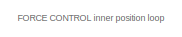
[diagram: root canvas - part 1/13, top left region]
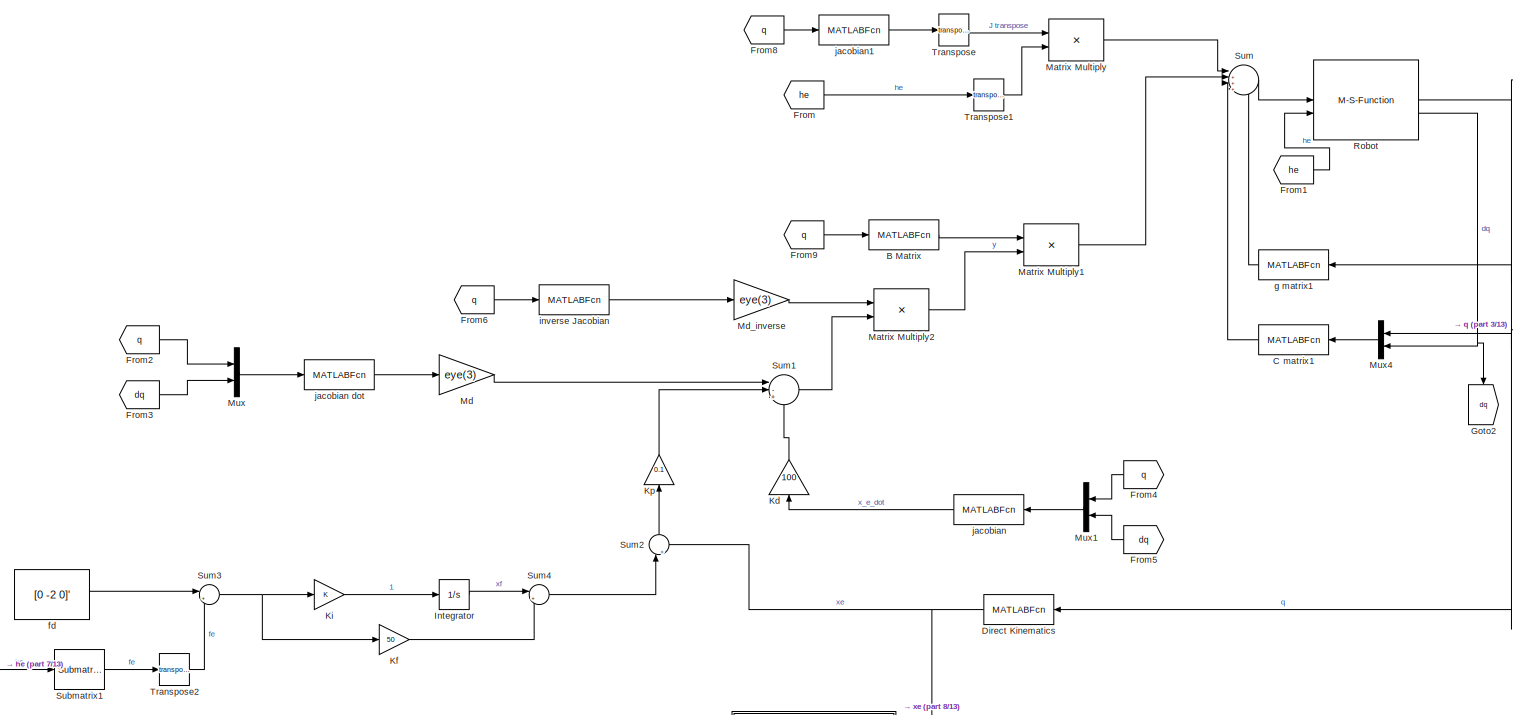
[diagram: root canvas - part 2/13, top left region]
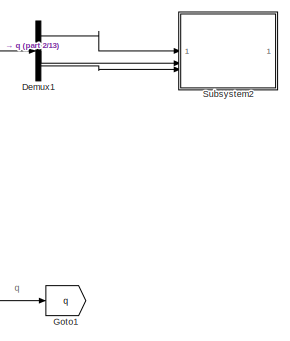
[diagram: root canvas - part 3/13, top center region]
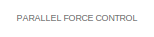
[diagram: root canvas - part 4/13, top right region]
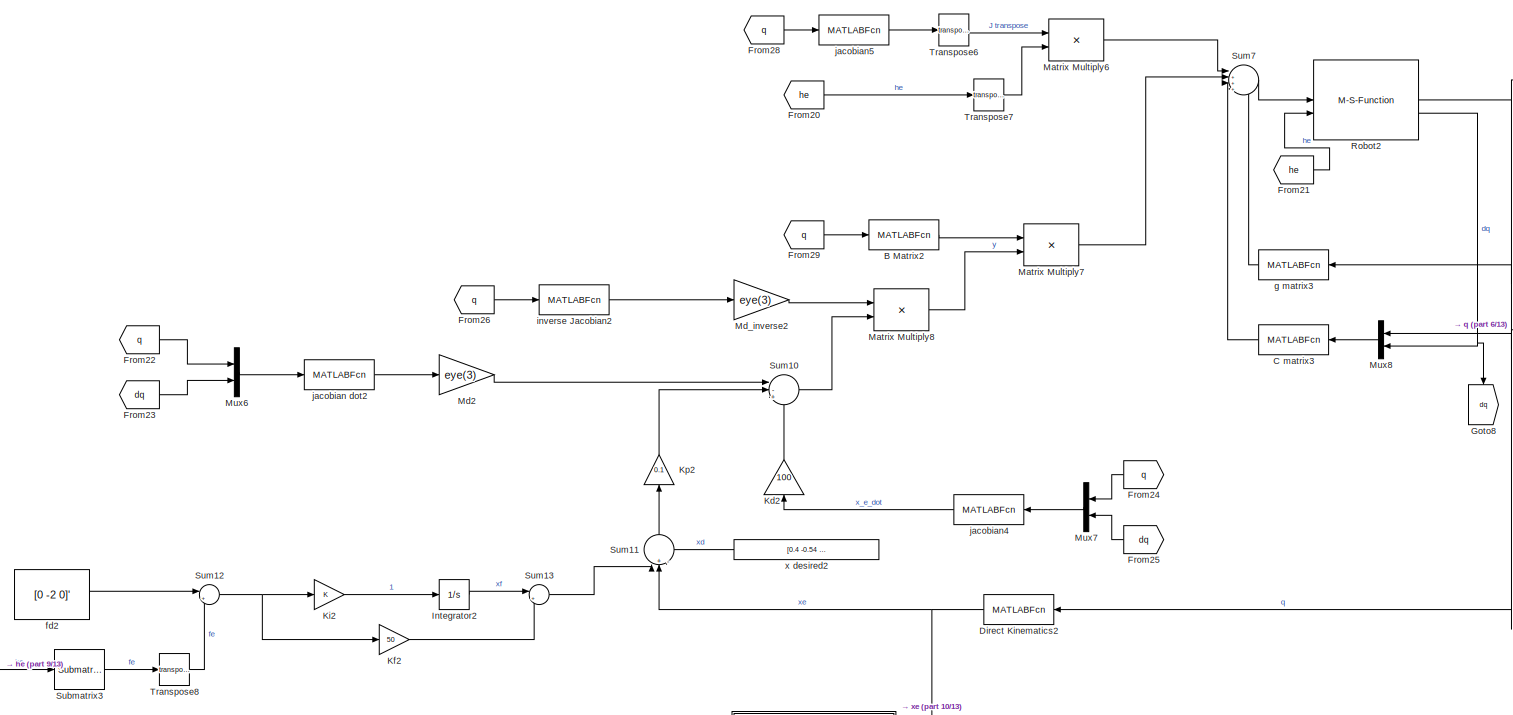
[diagram: root canvas - part 5/13, middle right region]
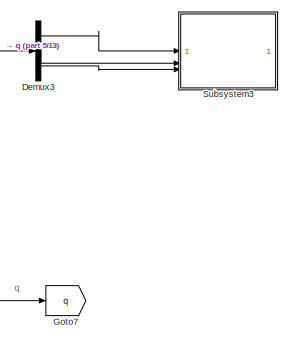
[diagram: root canvas - part 6/13, top right region]
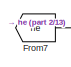
[diagram: root canvas - part 7/13, middle left region]
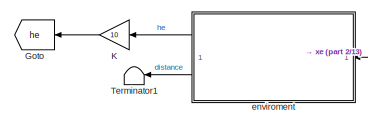
[diagram: root canvas - part 8/13, middle left region]
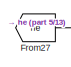
[diagram: root canvas - part 9/13, central region]
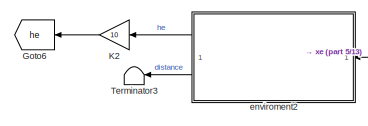
[diagram: root canvas - part 10/13, middle right region]
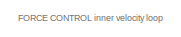
[diagram: root canvas - part 11/13, middle left region]
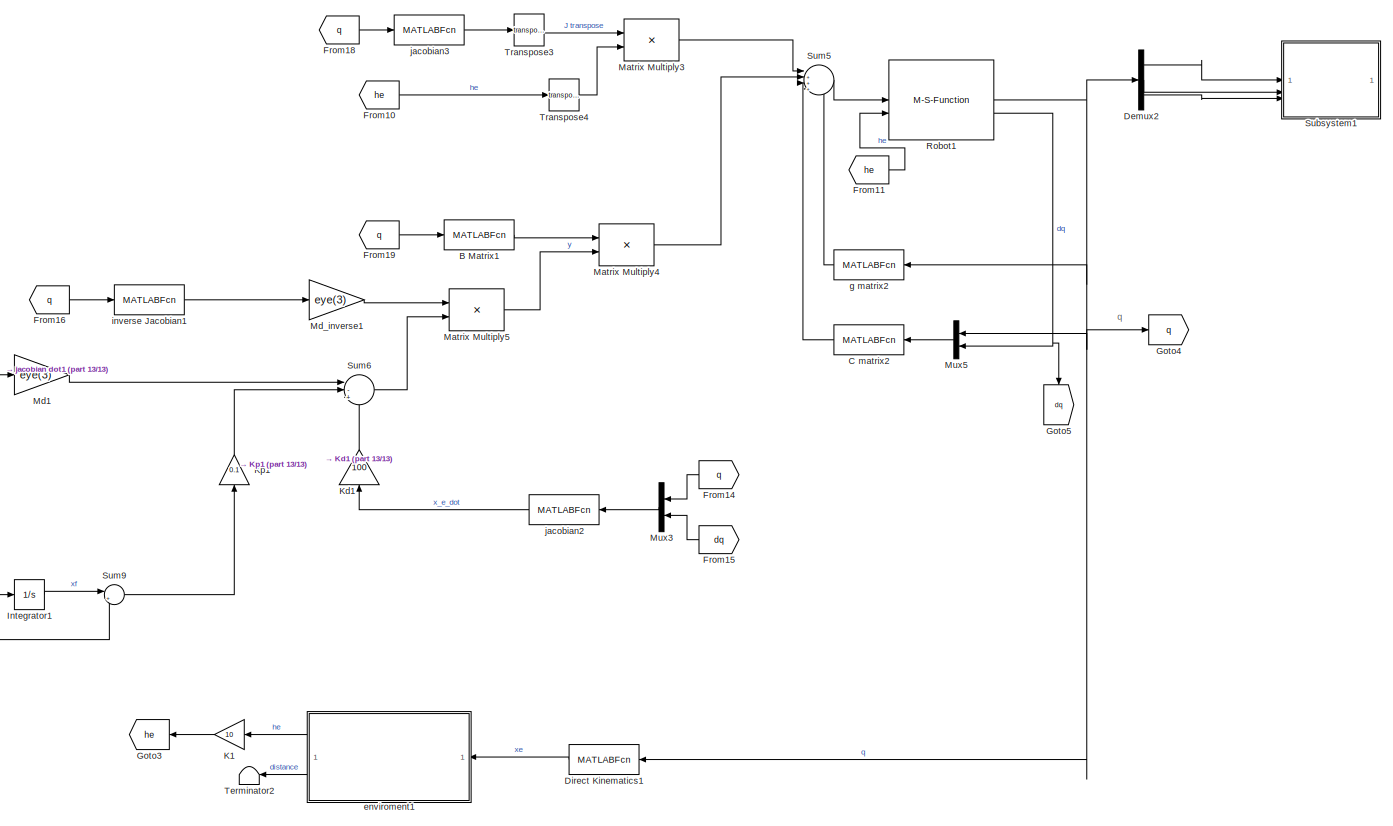
[diagram: root canvas - part 12/13, bottom left region]
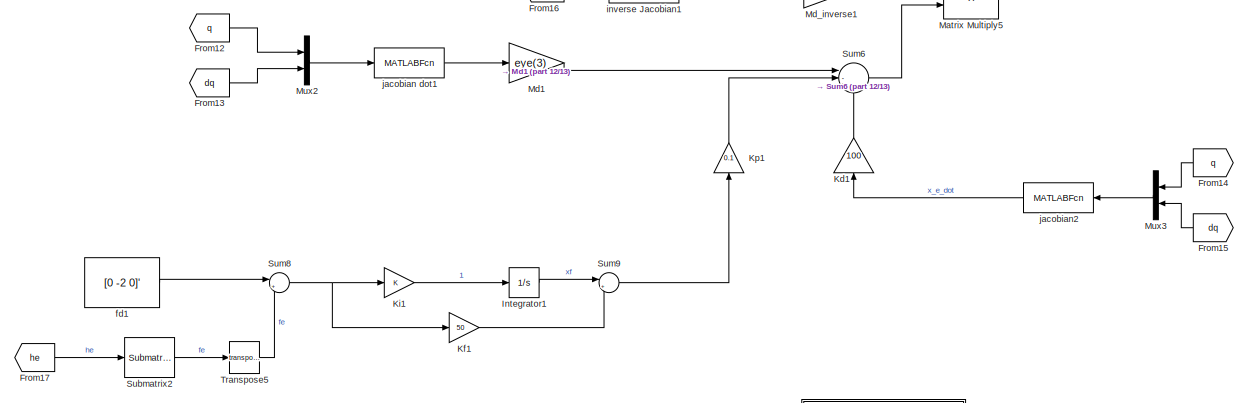
[diagram: root canvas - part 13/13, bottom left region]
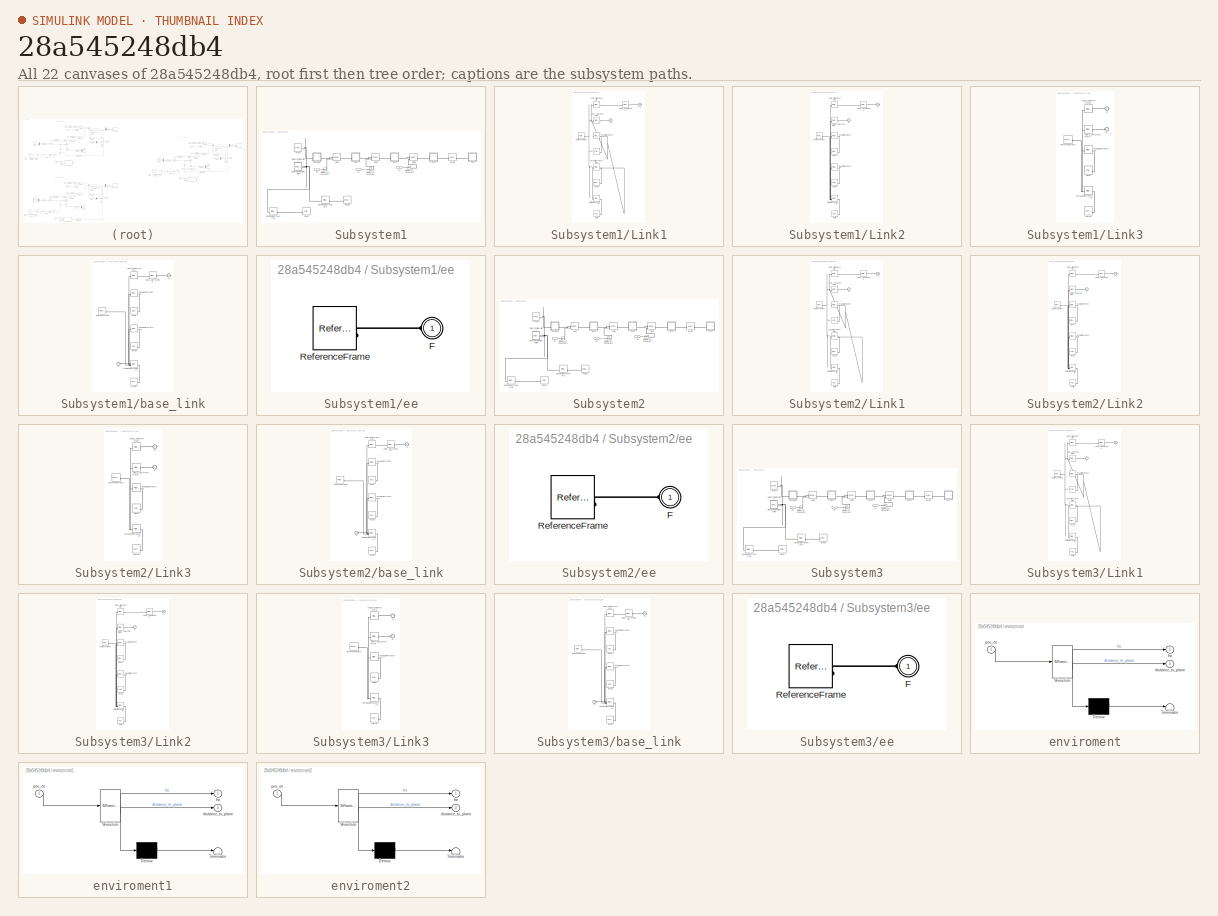
[diagram: thumbnail index - all 22 canvases of the model, root first then tree order]
MODEL slx_28a545248db4
KIND model
CONFIG AbsTol = auto
CONFIG EnableMultiTasking = off
CONFIG FixedStep = auto
CONFIG MaxStep = auto
CONFIG MinStep = auto
CONFIG RelTol = auto
CONFIG SampleTimeConstraint = Unconstrained
CONFIG SolverName = VariableStepAuto
CONFIG StartTime = 0.0
CONFIG StopTime = 10
BLOCK [MATLABFcn] B Matrix
  Commented = on
  MATLABFcn = robotStructure.func.Bmatrix(u(1), u(2), u(3))
  Output1D = off
BLOCK [MATLABFcn] B Matrix1
  Commented = on
  MATLABFcn = robotStructure.func.Bmatrix(u(1), u(2), u(3))
  Output1D = off
BLOCK [MATLABFcn] B Matrix2
  MATLABFcn = robotStructure.func.Bmatrix(u(1), u(2), u(3))
  Output1D = off
BLOCK [MATLABFcn] C matrix1
  Commented = on
  MATLABFcn = robotStructure.func.Cmatrix(u(1), u(2), u(3), u(4), u(5), u(6)) * [u(4); u(5); u(6)]
  Output1D = off
  OutputSignalType = real
BLOCK [MATLABFcn] C matrix2
  Commented = on
  MATLABFcn = robotStructure.func.Cmatrix(u(1), u(2), u(3), u(4), u(5), u(6)) * [u(4); u(5); u(6)]
  Output1D = off
  OutputSignalType = real
BLOCK [MATLABFcn] C matrix3
  MATLABFcn = robotStructure.func.Cmatrix(u(1), u(2), u(3), u(4), u(5), u(6)) * [u(4); u(5); u(6)]
  Output1D = off
  OutputSignalType = real
BLOCK [Demux] Demux1
  Commented = on
  Outputs = 3
BLOCK [Demux] Demux2
  Commented = on
  Outputs = 3
BLOCK [Demux] Demux3
  Outputs = 3
BLOCK [MATLABFcn] Direct Kinematics
  Commented = on
  MATLABFcn = robotStructure.func.EE(u(1), u(2), u(3))
  NameLocation = top
  Output1D = off
BLOCK [MATLABFcn] Direct Kinematics1
  Commented = on
  MATLABFcn = robotStructure.func.EE(u(1), u(2), u(3))
  NameLocation = top
  Output1D = off
BLOCK [MATLABFcn] Direct Kinematics2
  MATLABFcn = robotStructure.func.EE(u(1), u(2), u(3))
  NameLocation = top
  Output1D = off
BLOCK [From] From
  Commented = on
  GotoTag = he
BLOCK [From] From1
  Commented = on
  GotoTag = he
BLOCK [From] From10
  Commented = on
  GotoTag = he
BLOCK [From] From11
  Commented = on
  GotoTag = he
BLOCK [From] From12
  Commented = on
  GotoTag = q
BLOCK [From] From13
  Commented = on
  GotoTag = dq
BLOCK [From] From14
  Commented = on
  GotoTag = q
  NameLocation = top
BLOCK [From] From15
  Commented = on
  GotoTag = dq
  NameLocation = top
BLOCK [From] From16
  Commented = on
  GotoTag = q
BLOCK [From] From17
  Commented = on
  GotoTag = he
BLOCK [From] From18
  Commented = on
  GotoTag = q
BLOCK [From] From19
  Commented = on
  GotoTag = q
BLOCK [From] From2
  Commented = on
  GotoTag = q
BLOCK [From] From20
  GotoTag = he
BLOCK [From] From21
  GotoTag = he
BLOCK [From] From22
  GotoTag = q
BLOCK [From] From23
  GotoTag = dq
BLOCK [From] From24
  GotoTag = q
  NameLocation = top
BLOCK [From] From25
  GotoTag = dq
  NameLocation = top
BLOCK [From] From26
  GotoTag = q
BLOCK [From] From27
  GotoTag = he
BLOCK [From] From28
  GotoTag = q
BLOCK [From] From29
  GotoTag = q
BLOCK [From] From3
  Commented = on
  GotoTag = dq
BLOCK [From] From4
  Commented = on
  GotoTag = q
  NameLocation = top
BLOCK [From] From5
  Commented = on
  GotoTag = dq
  NameLocation = top
BLOCK [From] From6
  Commented = on
  GotoTag = q
BLOCK [From] From7
  Commented = on
  GotoTag = he
BLOCK [From] From8
  Commented = on
  GotoTag = q
BLOCK [From] From9
  Commented = on
  GotoTag = q
BLOCK [Goto] Goto
  Commented = on
  GotoTag = he
  NameLocation = top
BLOCK [Goto] Goto1
  Commented = on
  GotoTag = q
BLOCK [Goto] Goto2
  Commented = on
  GotoTag = dq
  NameLocation = left
BLOCK [Goto] Goto3
  Commented = on
  GotoTag = he
  NameLocation = top
BLOCK [Goto] Goto4
  Commented = on
  GotoTag = q
BLOCK [Goto] Goto5
  Commented = on
  GotoTag = dq
  NameLocation = left
BLOCK [Goto] Goto6
  GotoTag = he
  NameLocation = top
BLOCK [Goto] Goto7
  GotoTag = q
BLOCK [Goto] Goto8
  GotoTag = dq
  NameLocation = left
BLOCK [Integrator] Integrator
  Commented = on
BLOCK [Integrator] Integrator1
  Commented = on
BLOCK [Integrator] Integrator2
BLOCK [Gain] K
  Commented = on
  Gain = 10
  NameLocation = top
BLOCK [Gain] K1
  Commented = on
  Gain = 10
  NameLocation = top
BLOCK [Gain] K2
  Gain = 10
  NameLocation = top
BLOCK [Gain] Kd
  Commented = on
  Gain = 100
  NameLocation = right
BLOCK [Gain] Kd1
  Commented = on
  Gain = 100
  NameLocation = right
BLOCK [Gain] Kd2
  Gain = 100
  NameLocation = right
BLOCK [Gain] Kf
  Commented = on
  Gain = 50
BLOCK [Gain] Kf1
  Commented = on
  Gain = 50
BLOCK [Gain] Kf2
  Gain = 50
BLOCK [Gain] Ki
  Commented = on
BLOCK [Gain] Ki1
  Commented = on
BLOCK [Gain] Ki2
BLOCK [Gain] Kp
  Commented = on
  Gain = 0.1
  NameLocation = right
BLOCK [Gain] Kp1
  Commented = on
  Gain = 0.1
  NameLocation = right
BLOCK [Gain] Kp2
  Gain = 0.1
  NameLocation = right
BLOCK [Product] Matrix Multiply
  Commented = on
  Multiplication = Matrix(*)
BLOCK [Product] Matrix Multiply1
  Commented = on
  Multiplication = Matrix(*)
BLOCK [Product] Matrix Multiply2
  Commented = on
  Multiplication = Matrix(*)
BLOCK [Product] Matrix Multiply3
  Commented = on
  Multiplication = Matrix(*)
BLOCK [Product] Matrix Multiply4
  Commented = on
  Multiplication = Matrix(*)
BLOCK [Product] Matrix Multiply5
  Commented = on
  Multiplication = Matrix(*)
BLOCK [Product] Matrix Multiply6
  Multiplication = Matrix(*)
BLOCK [Product] Matrix Multiply7
  Multiplication = Matrix(*)
BLOCK [Product] Matrix Multiply8
  Multiplication = Matrix(*)
BLOCK [Gain] Md
  Commented = on
  Gain = eye(3)
  Multiplication = Matrix(K*u)
BLOCK [Gain] Md1
  Commented = on
  Gain = eye(3)
  Multiplication = Matrix(K*u)
BLOCK [Gain] Md2
  Gain = eye(3)
  Multiplication = Matrix(K*u)
BLOCK [Gain] Md_inverse
  Commented = on
  Gain = eye(3)
BLOCK [Gain] Md_inverse1
  Commented = on
  Gain = eye(3)
BLOCK [Gain] Md_inverse2
  Gain = eye(3)
BLOCK [Mux] Mux
  Commented = on
  DisplayOption = bar
  Inputs = 2
BLOCK [Mux] Mux1
  Commented = on
  DisplayOption = bar
  Inputs = 2
  NameLocation = top
BLOCK [Mux] Mux2
  Commented = on
  DisplayOption = bar
  Inputs = 2
BLOCK [Mux] Mux3
  Commented = on
  DisplayOption = bar
  Inputs = 2
  NameLocation = top
BLOCK [Mux] Mux4
  Commented = on
  DisplayOption = bar
  Inputs = 2
  NameLocation = top
BLOCK [Mux] Mux5
  Commented = on
  DisplayOption = bar
  Inputs = 2
  NameLocation = top
BLOCK [Mux] Mux6
  DisplayOption = bar
  Inputs = 2
BLOCK [Mux] Mux7
  DisplayOption = bar
  Inputs = 2
  NameLocation = top
BLOCK [Mux] Mux8
  DisplayOption = bar
  Inputs = 2
  NameLocation = top
BLOCK [M-S-Function] Robot
  Commented = on
  FunctionName = robotDynamicsModel
  Parameters = robotStructure, [0 -0.05 0], [0 0 0]
BLOCK [M-S-Function] Robot1
  Commented = on
  FunctionName = robotDynamicsModel
  Parameters = robotStructure, [0 -0.05 0], [0 0 0]
BLOCK [M-S-Function] Robot2
  FunctionName = robotDynamicsModel
  Parameters = robotStructure, [0 -0.2 0], [0 0 0]
BLOCK [Reference] Submatrix1  REF=matrix_library/Submatrix
  Commented = on
  LibrarySourceBlock = simulink/Matrix\nOperations/Submatrix
  SourceBlock = matrix_library/Submatrix
  SourceType = Submatrix
BLOCK [Reference] Submatrix2  REF=matrix_library/Submatrix
  Commented = on
  LibrarySourceBlock = simulink/Matrix\nOperations/Submatrix
  SourceBlock = matrix_library/Submatrix
  SourceType = Submatrix
BLOCK [Reference] Submatrix3  REF=matrix_library/Submatrix
  LibrarySourceBlock = simulink/Matrix\nOperations/Submatrix
  SourceBlock = matrix_library/Submatrix
  SourceType = Submatrix
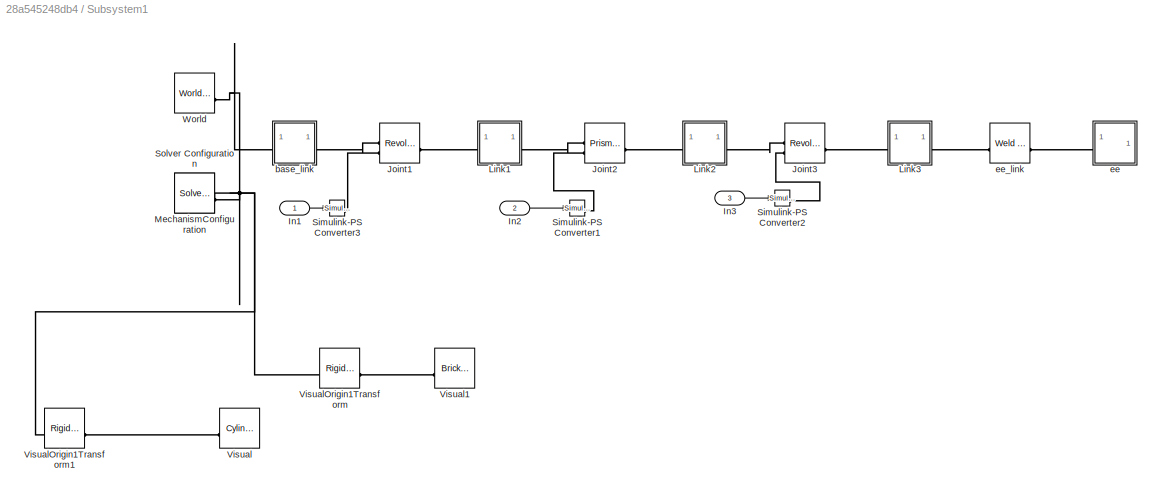
BLOCK [SubSystem] Subsystem1
  Commented = on
BLOCK [Inport] Subsystem1/In1
BLOCK [Inport] Subsystem1/In2
  Port = 2
BLOCK [Inport] Subsystem1/In3
  Port = 3
BLOCK [Reference] Subsystem1/Joint1  REF=sm_lib/Joints/Revolute Joint
  SourceBlock = sm_lib/Joints/Revolute Joint
  SourceType = Revolute Joint
BLOCK [Reference] Subsystem1/Joint2  REF=sm_lib/Joints/Prismatic
Joint
  SourceBlock = sm_lib/Joints/Prismatic\nJoint
  SourceType = Prismatic\nJoint
BLOCK [Reference] Subsystem1/Joint3  REF=sm_lib/Joints/Revolute Joint
  SourceBlock = sm_lib/Joints/Revolute Joint
  SourceType = Revolute Joint
BLOCK [SubSystem] Subsystem1/Link1
BLOCK [PMIOPort] Subsystem1/Link1/F
  Side = Left
BLOCK [PMIOPort] Subsystem1/Link1/F1
  Port = 2
  Side = Right
BLOCK [Reference] Subsystem1/Link1/Inertia  REF=sm_lib/Body Elements/Inertia
  SourceBlock = sm_lib/Body Elements/Inertia
  SourceType = Inertia
BLOCK [Reference] Subsystem1/Link1/InertiaOriginTransform  REF=sm_lib/Frames and
Transforms/Rigid
Transform
  SourceBlock = sm_lib/Frames and\nTransforms/Rigid\nTransform
  SourceType = Rigid\nTransform
BLOCK [Reference] Subsystem1/Link1/Joint1_AxisInvTransform  REF=sm_lib/Frames and
Transforms/Rigid
Transform
  SourceBlock = sm_lib/Frames and\nTransforms/Rigid\nTransform
  SourceType = Rigid\nTransform
BLOCK [Reference] Subsystem1/Link1/Joint2_AxisTransform  REF=sm_lib/Frames and
Transforms/Rigid
Transform
  SourceBlock = sm_lib/Frames and\nTransforms/Rigid\nTransform
  SourceType = Rigid\nTransform
BLOCK [Reference] Subsystem1/Link1/Joint2_OriginTransform  REF=sm_lib/Frames and
Transforms/Rigid
Transform
  SourceBlock = sm_lib/Frames and\nTransforms/Rigid\nTransform
  SourceType = Rigid\nTransform
BLOCK [Reference] Subsystem1/Link1/ReferenceFrame  REF=sm_lib/Frames and
Transforms/Reference
Frame
  SourceBlock = sm_lib/Frames and\nTransforms/Reference\nFrame
  SourceType = Reference\nFrame
BLOCK [Reference] Subsystem1/Link1/Visual  REF=sm_lib/Body Elements/Cylindrical Solid
  SourceBlock = sm_lib/Body Elements/Cylindrical Solid
  SourceType = Cylindrical Solid
BLOCK [Reference] Subsystem1/Link1/Visual1  REF=sm_lib/Body Elements/Brick Solid
  SourceBlock = sm_lib/Body Elements/Brick Solid
  SourceType = Brick Solid
BLOCK [Reference] Subsystem1/Link1/VisualOrigin1Transform  REF=sm_lib/Frames and
Transforms/Rigid
Transform
  SourceBlock = sm_lib/Frames and\nTransforms/Rigid\nTransform
  SourceType = Rigid\nTransform
BLOCK [Reference] Subsystem1/Link1/VisualOriginTransform  REF=sm_lib/Frames and
Transforms/Rigid
Transform
  SourceBlock = sm_lib/Frames and\nTransforms/Rigid\nTransform
  SourceType = Rigid\nTransform
BLOCK [SubSystem] Subsystem1/Link2
BLOCK [PMIOPort] Subsystem1/Link2/F
  Side = Left
BLOCK [PMIOPort] Subsystem1/Link2/F1
  Port = 2
  Side = Right
BLOCK [Reference] Subsystem1/Link2/Inertia  REF=sm_lib/Body Elements/Inertia
  SourceBlock = sm_lib/Body Elements/Inertia
  SourceType = Inertia
BLOCK [Reference] Subsystem1/Link2/InertiaOriginTransform  REF=sm_lib/Frames and
Transforms/Rigid
Transform
  SourceBlock = sm_lib/Frames and\nTransforms/Rigid\nTransform
  SourceType = Rigid\nTransform
BLOCK [Reference] Subsystem1/Link2/Joint2_AxisInvTransform  REF=sm_lib/Frames and
Transforms/Rigid
Transform
  SourceBlock = sm_lib/Frames and\nTransforms/Rigid\nTransform
  SourceType = Rigid\nTransform
BLOCK [Reference] Subsystem1/Link2/Joint3_AxisTransform  REF=sm_lib/Frames and
Transforms/Rigid
Transform
  SourceBlock = sm_lib/Frames and\nTransforms/Rigid\nTransform
  SourceType = Rigid\nTransform
BLOCK [Reference] Subsystem1/Link2/Joint3_OriginTransform  REF=sm_lib/Frames and
Transforms/Rigid
Transform
  SourceBlock = sm_lib/Frames and\nTransforms/Rigid\nTransform
  SourceType = Rigid\nTransform
BLOCK [Reference] Subsystem1/Link2/ReferenceFrame  REF=sm_lib/Frames and
Transforms/Reference
Frame
  SourceBlock = sm_lib/Frames and\nTransforms/Reference\nFrame
  SourceType = Reference\nFrame
BLOCK [Reference] Subsystem1/Link2/Visual  REF=sm_lib/Body Elements/Brick Solid
  SourceBlock = sm_lib/Body Elements/Brick Solid
  SourceType = Brick Solid
BLOCK [Reference] Subsystem1/Link2/Visual1  REF=sm_lib/Body Elements/Cylindrical Solid
  SourceBlock = sm_lib/Body Elements/Cylindrical Solid
  SourceType = Cylindrical Solid
BLOCK [Reference] Subsystem1/Link2/VisualOrigin1Transform  REF=sm_lib/Frames and
Transforms/Rigid
Transform
  SourceBlock = sm_lib/Frames and\nTransforms/Rigid\nTransform
  SourceType = Rigid\nTransform
BLOCK [Reference] Subsystem1/Link2/VisualOriginTransform  REF=sm_lib/Frames and
Transforms/Rigid
Transform
  SourceBlock = sm_lib/Frames and\nTransforms/Rigid\nTransform
  SourceType = Rigid\nTransform
BLOCK [SubSystem] Subsystem1/Link3
BLOCK [PMIOPort] Subsystem1/Link3/F
  Side = Left
BLOCK [PMIOPort] Subsystem1/Link3/F1
  Port = 2
  Side = Right
BLOCK [Reference] Subsystem1/Link3/Inertia  REF=sm_lib/Body Elements/Inertia
  SourceBlock = sm_lib/Body Elements/Inertia
  SourceType = Inertia
BLOCK [Reference] Subsystem1/Link3/InertiaOriginTransform  REF=sm_lib/Frames and
Transforms/Rigid
Transform
  SourceBlock = sm_lib/Frames and\nTransforms/Rigid\nTransform
  SourceType = Rigid\nTransform
BLOCK [Reference] Subsystem1/Link3/Joint3_AxisInvTransform  REF=sm_lib/Frames and
Transforms/Rigid
Transform
  SourceBlock = sm_lib/Frames and\nTransforms/Rigid\nTransform
  SourceType = Rigid\nTransform
BLOCK [Reference] Subsystem1/Link3/ReferenceFrame  REF=sm_lib/Frames and
Transforms/Reference
Frame
  SourceBlock = sm_lib/Frames and\nTransforms/Reference\nFrame
  SourceType = Reference\nFrame
BLOCK [Reference] Subsystem1/Link3/Visual  REF=sm_lib/Body Elements/Cylindrical Solid
  SourceBlock = sm_lib/Body Elements/Cylindrical Solid
  SourceType = Cylindrical Solid
BLOCK [Reference] Subsystem1/Link3/VisualOriginTransform  REF=sm_lib/Frames and
Transforms/Rigid
Transform
  SourceBlock = sm_lib/Frames and\nTransforms/Rigid\nTransform
  SourceType = Rigid\nTransform
BLOCK [Reference] Subsystem1/Link3/ee_link_OriginTransform  REF=sm_lib/Frames and
Transforms/Rigid
Transform
  SourceBlock = sm_lib/Frames and\nTransforms/Rigid\nTransform
  SourceType = Rigid\nTransform
BLOCK [Reference] Subsystem1/MechanismConfiguration  REF=sm_lib/Utilities/Mechanism
Configuration
  SourceBlock = sm_lib/Utilities/Mechanism\nConfiguration
  SourceType = Mechanism\nConfiguration
BLOCK [Reference] Subsystem1/Simulink-PS Converter1  REF=nesl_utility/Simulink-PS
Converter
  SourceBlock = nesl_utility/Simulink-PS\nConverter
  SourceType = Simulink-PS\nConverter
BLOCK [Reference] Subsystem1/Simulink-PS Converter2  REF=nesl_utility/Simulink-PS
Converter
  SourceBlock = nesl_utility/Simulink-PS\nConverter
  SourceType = Simulink-PS\nConverter
BLOCK [Reference] Subsystem1/Simulink-PS Converter3  REF=nesl_utility/Simulink-PS
Converter
  SourceBlock = nesl_utility/Simulink-PS\nConverter
  SourceType = Simulink-PS\nConverter
BLOCK [Reference] Subsystem1/Solver Configuration  REF=nesl_utility/Solver
Configuration
  SourceBlock = nesl_utility/Solver\nConfiguration
  SourceType = Solver\nConfiguration
BLOCK [Reference] Subsystem1/Visual  REF=sm_lib/Body Elements/Cylindrical Solid
  NameLocation = top
  SourceBlock = sm_lib/Body Elements/Cylindrical Solid
  SourceType = Cylindrical Solid
BLOCK [Reference] Subsystem1/Visual1  REF=sm_lib/Body Elements/Brick Solid
  NameLocation = top
  SourceBlock = sm_lib/Body Elements/Brick Solid
  SourceType = Brick Solid
BLOCK [Reference] Subsystem1/VisualOrigin1Transform  REF=sm_lib/Frames and
Transforms/Rigid
Transform
  SourceBlock = sm_lib/Frames and\nTransforms/Rigid\nTransform
  SourceType = Rigid\nTransform
BLOCK [Reference] Subsystem1/VisualOrigin1Transform1  REF=sm_lib/Frames and
Transforms/Rigid
Transform
  SourceBlock = sm_lib/Frames and\nTransforms/Rigid\nTransform
  SourceType = Rigid\nTransform
BLOCK [Reference] Subsystem1/World  REF=sm_lib/Frames and
Transforms/World Frame
  SourceBlock = sm_lib/Frames and\nTransforms/World Frame
  SourceType = World Frame
BLOCK [SubSystem] Subsystem1/base_link
BLOCK [PMIOPort] Subsystem1/base_link/F
  Side = Left
BLOCK [PMIOPort] Subsystem1/base_link/F1
  Port = 2
  Side = Right
BLOCK [Reference] Subsystem1/base_link/Inertia  REF=sm_lib/Body Elements/Inertia
  SourceBlock = sm_lib/Body Elements/Inertia
  SourceType = Inertia
BLOCK [Reference] Subsystem1/base_link/InertiaOriginTransform  REF=sm_lib/Frames and
Transforms/Rigid
Transform
  SourceBlock = sm_lib/Frames and\nTransforms/Rigid\nTransform
  SourceType = Rigid\nTransform
BLOCK [Reference] Subsystem1/base_link/Joint1_AxisTransform  REF=sm_lib/Frames and
Transforms/Rigid
Transform
  SourceBlock = sm_lib/Frames and\nTransforms/Rigid\nTransform
  SourceType = Rigid\nTransform
BLOCK [Reference] Subsystem1/base_link/Joint1_OriginTransform  REF=sm_lib/Frames and
Transforms/Rigid
Transform
  SourceBlock = sm_lib/Frames and\nTransforms/Rigid\nTransform
  SourceType = Rigid\nTransform
BLOCK [Reference] Subsystem1/base_link/ReferenceFrame  REF=sm_lib/Frames and
Transforms/Reference
Frame
  SourceBlock = sm_lib/Frames and\nTransforms/Reference\nFrame
  SourceType = Reference\nFrame
BLOCK [Reference] Subsystem1/base_link/Visual  REF=sm_lib/Body Elements/Cylindrical Solid
  SourceBlock = sm_lib/Body Elements/Cylindrical Solid
  SourceType = Cylindrical Solid
BLOCK [Reference] Subsystem1/base_link/Visual1  REF=sm_lib/Body Elements/Cylindrical Solid
  SourceBlock = sm_lib/Body Elements/Cylindrical Solid
  SourceType = Cylindrical Solid
BLOCK [Reference] Subsystem1/base_link/VisualOrigin1Transform  REF=sm_lib/Frames and
Transforms/Rigid
Transform
  SourceBlock = sm_lib/Frames and\nTransforms/Rigid\nTransform
  SourceType = Rigid\nTransform
BLOCK [Reference] Subsystem1/base_link/VisualOriginTransform  REF=sm_lib/Frames and
Transforms/Rigid
Transform
  SourceBlock = sm_lib/Frames and\nTransforms/Rigid\nTransform
  SourceType = Rigid\nTransform
BLOCK [SubSystem] Subsystem1/ee
BLOCK [PMIOPort] Subsystem1/ee/F
  Side = Left
BLOCK [Reference] Subsystem1/ee/ReferenceFrame  REF=sm_lib/Frames and
Transforms/Reference
Frame
  SourceBlock = sm_lib/Frames and\nTransforms/Reference\nFrame
  SourceType = Reference\nFrame
BLOCK [Reference] Subsystem1/ee_link  REF=sm_lib/Joints/Weld Joint
  SourceBlock = sm_lib/Joints/Weld Joint
  SourceType = Weld Joint
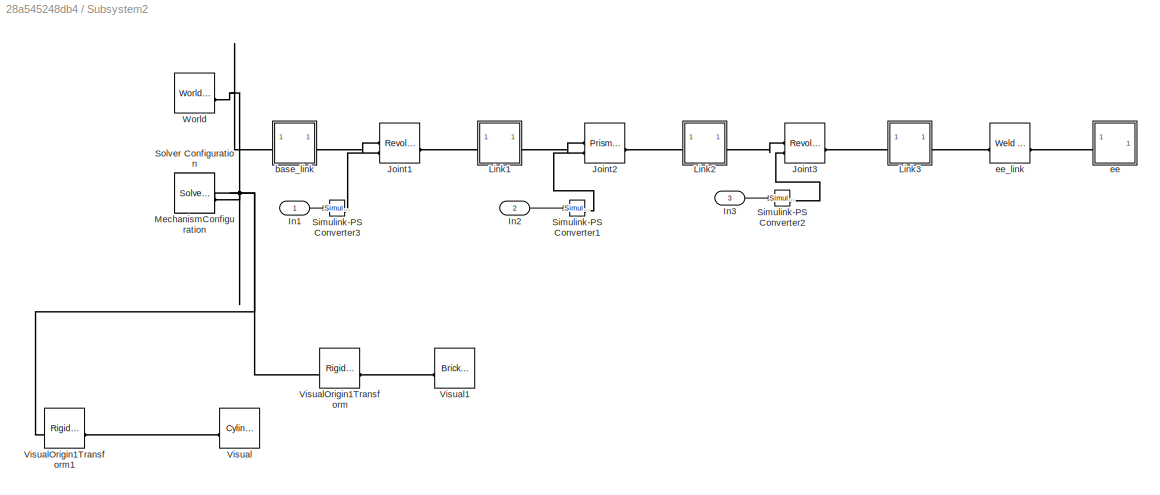
BLOCK [SubSystem] Subsystem2
  Commented = on
BLOCK [Inport] Subsystem2/In1
BLOCK [Inport] Subsystem2/In2
  Port = 2
BLOCK [Inport] Subsystem2/In3
  Port = 3
BLOCK [Reference] Subsystem2/Joint1  REF=sm_lib/Joints/Revolute Joint
  SourceBlock = sm_lib/Joints/Revolute Joint
  SourceType = Revolute Joint
BLOCK [Reference] Subsystem2/Joint2  REF=sm_lib/Joints/Prismatic
Joint
  SourceBlock = sm_lib/Joints/Prismatic\nJoint
  SourceType = Prismatic\nJoint
BLOCK [Reference] Subsystem2/Joint3  REF=sm_lib/Joints/Revolute Joint
  SourceBlock = sm_lib/Joints/Revolute Joint
  SourceType = Revolute Joint
BLOCK [SubSystem] Subsystem2/Link1
BLOCK [PMIOPort] Subsystem2/Link1/F
  Side = Left
BLOCK [PMIOPort] Subsystem2/Link1/F1
  Port = 2
  Side = Right
BLOCK [Reference] Subsystem2/Link1/Inertia  REF=sm_lib/Body Elements/Inertia
  SourceBlock = sm_lib/Body Elements/Inertia
  SourceType = Inertia
BLOCK [Reference] Subsystem2/Link1/InertiaOriginTransform  REF=sm_lib/Frames and
Transforms/Rigid
Transform
  SourceBlock = sm_lib/Frames and\nTransforms/Rigid\nTransform
  SourceType = Rigid\nTransform
BLOCK [Reference] Subsystem2/Link1/Joint1_AxisInvTransform  REF=sm_lib/Frames and
Transforms/Rigid
Transform
  SourceBlock = sm_lib/Frames and\nTransforms/Rigid\nTransform
  SourceType = Rigid\nTransform
BLOCK [Reference] Subsystem2/Link1/Joint2_AxisTransform  REF=sm_lib/Frames and
Transforms/Rigid
Transform
  SourceBlock = sm_lib/Frames and\nTransforms/Rigid\nTransform
  SourceType = Rigid\nTransform
BLOCK [Reference] Subsystem2/Link1/Joint2_OriginTransform  REF=sm_lib/Frames and
Transforms/Rigid
Transform
  SourceBlock = sm_lib/Frames and\nTransforms/Rigid\nTransform
  SourceType = Rigid\nTransform
BLOCK [Reference] Subsystem2/Link1/ReferenceFrame  REF=sm_lib/Frames and
Transforms/Reference
Frame
  SourceBlock = sm_lib/Frames and\nTransforms/Reference\nFrame
  SourceType = Reference\nFrame
BLOCK [Reference] Subsystem2/Link1/Visual  REF=sm_lib/Body Elements/Cylindrical Solid
  SourceBlock = sm_lib/Body Elements/Cylindrical Solid
  SourceType = Cylindrical Solid
BLOCK [Reference] Subsystem2/Link1/Visual1  REF=sm_lib/Body Elements/Brick Solid
  SourceBlock = sm_lib/Body Elements/Brick Solid
  SourceType = Brick Solid
BLOCK [Reference] Subsystem2/Link1/VisualOrigin1Transform  REF=sm_lib/Frames and
Transforms/Rigid
Transform
  SourceBlock = sm_lib/Frames and\nTransforms/Rigid\nTransform
  SourceType = Rigid\nTransform
BLOCK [Reference] Subsystem2/Link1/VisualOriginTransform  REF=sm_lib/Frames and
Transforms/Rigid
Transform
  SourceBlock = sm_lib/Frames and\nTransforms/Rigid\nTransform
  SourceType = Rigid\nTransform
BLOCK [SubSystem] Subsystem2/Link2
BLOCK [PMIOPort] Subsystem2/Link2/F
  Side = Left
BLOCK [PMIOPort] Subsystem2/Link2/F1
  Port = 2
  Side = Right
BLOCK [Reference] Subsystem2/Link2/Inertia  REF=sm_lib/Body Elements/Inertia
  SourceBlock = sm_lib/Body Elements/Inertia
  SourceType = Inertia
BLOCK [Reference] Subsystem2/Link2/InertiaOriginTransform  REF=sm_lib/Frames and
Transforms/Rigid
Transform
  SourceBlock = sm_lib/Frames and\nTransforms/Rigid\nTransform
  SourceType = Rigid\nTransform
BLOCK [Reference] Subsystem2/Link2/Joint2_AxisInvTransform  REF=sm_lib/Frames and
Transforms/Rigid
Transform
  SourceBlock = sm_lib/Frames and\nTransforms/Rigid\nTransform
  SourceType = Rigid\nTransform
BLOCK [Reference] Subsystem2/Link2/Joint3_AxisTransform  REF=sm_lib/Frames and
Transforms/Rigid
Transform
  SourceBlock = sm_lib/Frames and\nTransforms/Rigid\nTransform
  SourceType = Rigid\nTransform
BLOCK [Reference] Subsystem2/Link2/Joint3_OriginTransform  REF=sm_lib/Frames and
Transforms/Rigid
Transform
  SourceBlock = sm_lib/Frames and\nTransforms/Rigid\nTransform
  SourceType = Rigid\nTransform
BLOCK [Reference] Subsystem2/Link2/ReferenceFrame  REF=sm_lib/Frames and
Transforms/Reference
Frame
  SourceBlock = sm_lib/Frames and\nTransforms/Reference\nFrame
  SourceType = Reference\nFrame
BLOCK [Reference] Subsystem2/Link2/Visual  REF=sm_lib/Body Elements/Brick Solid
  SourceBlock = sm_lib/Body Elements/Brick Solid
  SourceType = Brick Solid
BLOCK [Reference] Subsystem2/Link2/Visual1  REF=sm_lib/Body Elements/Cylindrical Solid
  SourceBlock = sm_lib/Body Elements/Cylindrical Solid
  SourceType = Cylindrical Solid
BLOCK [Reference] Subsystem2/Link2/VisualOrigin1Transform  REF=sm_lib/Frames and
Transforms/Rigid
Transform
  SourceBlock = sm_lib/Frames and\nTransforms/Rigid\nTransform
  SourceType = Rigid\nTransform
BLOCK [Reference] Subsystem2/Link2/VisualOriginTransform  REF=sm_lib/Frames and
Transforms/Rigid
Transform
  SourceBlock = sm_lib/Frames and\nTransforms/Rigid\nTransform
  SourceType = Rigid\nTransform
BLOCK [SubSystem] Subsystem2/Link3
BLOCK [PMIOPort] Subsystem2/Link3/F
  Side = Left
BLOCK [PMIOPort] Subsystem2/Link3/F1
  Port = 2
  Side = Right
BLOCK [Reference] Subsystem2/Link3/Inertia  REF=sm_lib/Body Elements/Inertia
  SourceBlock = sm_lib/Body Elements/Inertia
  SourceType = Inertia
BLOCK [Reference] Subsystem2/Link3/InertiaOriginTransform  REF=sm_lib/Frames and
Transforms/Rigid
Transform
  SourceBlock = sm_lib/Frames and\nTransforms/Rigid\nTransform
  SourceType = Rigid\nTransform
BLOCK [Reference] Subsystem2/Link3/Joint3_AxisInvTransform  REF=sm_lib/Frames and
Transforms/Rigid
Transform
  SourceBlock = sm_lib/Frames and\nTransforms/Rigid\nTransform
  SourceType = Rigid\nTransform
BLOCK [Reference] Subsystem2/Link3/ReferenceFrame  REF=sm_lib/Frames and
Transforms/Reference
Frame
  SourceBlock = sm_lib/Frames and\nTransforms/Reference\nFrame
  SourceType = Reference\nFrame
BLOCK [Reference] Subsystem2/Link3/Visual  REF=sm_lib/Body Elements/Cylindrical Solid
  SourceBlock = sm_lib/Body Elements/Cylindrical Solid
  SourceType = Cylindrical Solid
BLOCK [Reference] Subsystem2/Link3/VisualOriginTransform  REF=sm_lib/Frames and
Transforms/Rigid
Transform
  SourceBlock = sm_lib/Frames and\nTransforms/Rigid\nTransform
  SourceType = Rigid\nTransform
BLOCK [Reference] Subsystem2/Link3/ee_link_OriginTransform  REF=sm_lib/Frames and
Transforms/Rigid
Transform
  SourceBlock = sm_lib/Frames and\nTransforms/Rigid\nTransform
  SourceType = Rigid\nTransform
BLOCK [Reference] Subsystem2/MechanismConfiguration  REF=sm_lib/Utilities/Mechanism
Configuration
  SourceBlock = sm_lib/Utilities/Mechanism\nConfiguration
  SourceType = Mechanism\nConfiguration
BLOCK [Reference] Subsystem2/Simulink-PS Converter1  REF=nesl_utility/Simulink-PS
Converter
  SourceBlock = nesl_utility/Simulink-PS\nConverter
  SourceType = Simulink-PS\nConverter
BLOCK [Reference] Subsystem2/Simulink-PS Converter2  REF=nesl_utility/Simulink-PS
Converter
  SourceBlock = nesl_utility/Simulink-PS\nConverter
  SourceType = Simulink-PS\nConverter
BLOCK [Reference] Subsystem2/Simulink-PS Converter3  REF=nesl_utility/Simulink-PS
Converter
  SourceBlock = nesl_utility/Simulink-PS\nConverter
  SourceType = Simulink-PS\nConverter
BLOCK [Reference] Subsystem2/Solver Configuration  REF=nesl_utility/Solver
Configuration
  SourceBlock = nesl_utility/Solver\nConfiguration
  SourceType = Solver\nConfiguration
BLOCK [Reference] Subsystem2/Visual  REF=sm_lib/Body Elements/Cylindrical Solid
  NameLocation = top
  SourceBlock = sm_lib/Body Elements/Cylindrical Solid
  SourceType = Cylindrical Solid
BLOCK [Reference] Subsystem2/Visual1  REF=sm_lib/Body Elements/Brick Solid
  NameLocation = top
  SourceBlock = sm_lib/Body Elements/Brick Solid
  SourceType = Brick Solid
BLOCK [Reference] Subsystem2/VisualOrigin1Transform  REF=sm_lib/Frames and
Transforms/Rigid
Transform
  SourceBlock = sm_lib/Frames and\nTransforms/Rigid\nTransform
  SourceType = Rigid\nTransform
BLOCK [Reference] Subsystem2/VisualOrigin1Transform1  REF=sm_lib/Frames and
Transforms/Rigid
Transform
  SourceBlock = sm_lib/Frames and\nTransforms/Rigid\nTransform
  SourceType = Rigid\nTransform
BLOCK [Reference] Subsystem2/World  REF=sm_lib/Frames and
Transforms/World Frame
  SourceBlock = sm_lib/Frames and\nTransforms/World Frame
  SourceType = World Frame
BLOCK [SubSystem] Subsystem2/base_link
BLOCK [PMIOPort] Subsystem2/base_link/F
  Side = Left
BLOCK [PMIOPort] Subsystem2/base_link/F1
  Port = 2
  Side = Right
BLOCK [Reference] Subsystem2/base_link/Inertia  REF=sm_lib/Body Elements/Inertia
  SourceBlock = sm_lib/Body Elements/Inertia
  SourceType = Inertia
BLOCK [Reference] Subsystem2/base_link/InertiaOriginTransform  REF=sm_lib/Frames and
Transforms/Rigid
Transform
  SourceBlock = sm_lib/Frames and\nTransforms/Rigid\nTransform
  SourceType = Rigid\nTransform
BLOCK [Reference] Subsystem2/base_link/Joint1_AxisTransform  REF=sm_lib/Frames and
Transforms/Rigid
Transform
  SourceBlock = sm_lib/Frames and\nTransforms/Rigid\nTransform
  SourceType = Rigid\nTransform
BLOCK [Reference] Subsystem2/base_link/Joint1_OriginTransform  REF=sm_lib/Frames and
Transforms/Rigid
Transform
  SourceBlock = sm_lib/Frames and\nTransforms/Rigid\nTransform
  SourceType = Rigid\nTransform
BLOCK [Reference] Subsystem2/base_link/ReferenceFrame  REF=sm_lib/Frames and
Transforms/Reference
Frame
  SourceBlock = sm_lib/Frames and\nTransforms/Reference\nFrame
  SourceType = Reference\nFrame
BLOCK [Reference] Subsystem2/base_link/Visual  REF=sm_lib/Body Elements/Cylindrical Solid
  SourceBlock = sm_lib/Body Elements/Cylindrical Solid
  SourceType = Cylindrical Solid
BLOCK [Reference] Subsystem2/base_link/Visual1  REF=sm_lib/Body Elements/Cylindrical Solid
  SourceBlock = sm_lib/Body Elements/Cylindrical Solid
  SourceType = Cylindrical Solid
BLOCK [Reference] Subsystem2/base_link/VisualOrigin1Transform  REF=sm_lib/Frames and
Transforms/Rigid
Transform
  SourceBlock = sm_lib/Frames and\nTransforms/Rigid\nTransform
  SourceType = Rigid\nTransform
BLOCK [Reference] Subsystem2/base_link/VisualOriginTransform  REF=sm_lib/Frames and
Transforms/Rigid
Transform
  SourceBlock = sm_lib/Frames and\nTransforms/Rigid\nTransform
  SourceType = Rigid\nTransform
BLOCK [SubSystem] Subsystem2/ee
BLOCK [PMIOPort] Subsystem2/ee/F
  Side = Left
BLOCK [Reference] Subsystem2/ee/ReferenceFrame  REF=sm_lib/Frames and
Transforms/Reference
Frame
  SourceBlock = sm_lib/Frames and\nTransforms/Reference\nFrame
  SourceType = Reference\nFrame
BLOCK [Reference] Subsystem2/ee_link  REF=sm_lib/Joints/Weld Joint
  SourceBlock = sm_lib/Joints/Weld Joint
  SourceType = Weld Joint
BLOCK [SubSystem] Subsystem3
BLOCK [Inport] Subsystem3/In1
BLOCK [Inport] Subsystem3/In2
  Port = 2
BLOCK [Inport] Subsystem3/In3
  Port = 3
BLOCK [Reference] Subsystem3/Joint1  REF=sm_lib/Joints/Revolute Joint
  SourceBlock = sm_lib/Joints/Revolute Joint
  SourceType = Revolute Joint
BLOCK [Reference] Subsystem3/Joint2  REF=sm_lib/Joints/Prismatic
Joint
  SourceBlock = sm_lib/Joints/Prismatic\nJoint
  SourceType = Prismatic\nJoint
BLOCK [Reference] Subsystem3/Joint3  REF=sm_lib/Joints/Revolute Joint
  SourceBlock = sm_lib/Joints/Revolute Joint
  SourceType = Revolute Joint
BLOCK [SubSystem] Subsystem3/Link1
BLOCK [PMIOPort] Subsystem3/Link1/F
  Side = Left
BLOCK [PMIOPort] Subsystem3/Link1/F1
  Port = 2
  Side = Right
BLOCK [Reference] Subsystem3/Link1/Inertia  REF=sm_lib/Body Elements/Inertia
  SourceBlock = sm_lib/Body Elements/Inertia
  SourceType = Inertia
BLOCK [Reference] Subsystem3/Link1/InertiaOriginTransform  REF=sm_lib/Frames and
Transforms/Rigid
Transform
  SourceBlock = sm_lib/Frames and\nTransforms/Rigid\nTransform
  SourceType = Rigid\nTransform
BLOCK [Reference] Subsystem3/Link1/Joint1_AxisInvTransform  REF=sm_lib/Frames and
Transforms/Rigid
Transform
  SourceBlock = sm_lib/Frames and\nTransforms/Rigid\nTransform
  SourceType = Rigid\nTransform
BLOCK [Reference] Subsystem3/Link1/Joint2_AxisTransform  REF=sm_lib/Frames and
Transforms/Rigid
Transform
  SourceBlock = sm_lib/Frames and\nTransforms/Rigid\nTransform
  SourceType = Rigid\nTransform
BLOCK [Reference] Subsystem3/Link1/Joint2_OriginTransform  REF=sm_lib/Frames and
Transforms/Rigid
Transform
  SourceBlock = sm_lib/Frames and\nTransforms/Rigid\nTransform
  SourceType = Rigid\nTransform
BLOCK [Reference] Subsystem3/Link1/ReferenceFrame  REF=sm_lib/Frames and
Transforms/Reference
Frame
  SourceBlock = sm_lib/Frames and\nTransforms/Reference\nFrame
  SourceType = Reference\nFrame
BLOCK [Reference] Subsystem3/Link1/Visual  REF=sm_lib/Body Elements/Cylindrical Solid
  SourceBlock = sm_lib/Body Elements/Cylindrical Solid
  SourceType = Cylindrical Solid
BLOCK [Reference] Subsystem3/Link1/Visual1  REF=sm_lib/Body Elements/Brick Solid
  SourceBlock = sm_lib/Body Elements/Brick Solid
  SourceType = Brick Solid
BLOCK [Reference] Subsystem3/Link1/VisualOrigin1Transform  REF=sm_lib/Frames and
Transforms/Rigid
Transform
  SourceBlock = sm_lib/Frames and\nTransforms/Rigid\nTransform
  SourceType = Rigid\nTransform
BLOCK [Reference] Subsystem3/Link1/VisualOriginTransform  REF=sm_lib/Frames and
Transforms/Rigid
Transform
  SourceBlock = sm_lib/Frames and\nTransforms/Rigid\nTransform
  SourceType = Rigid\nTransform
BLOCK [SubSystem] Subsystem3/Link2
BLOCK [PMIOPort] Subsystem3/Link2/F
  Side = Left
BLOCK [PMIOPort] Subsystem3/Link2/F1
  Port = 2
  Side = Right
BLOCK [Reference] Subsystem3/Link2/Inertia  REF=sm_lib/Body Elements/Inertia
  SourceBlock = sm_lib/Body Elements/Inertia
  SourceType = Inertia
BLOCK [Reference] Subsystem3/Link2/InertiaOriginTransform  REF=sm_lib/Frames and
Transforms/Rigid
Transform
  SourceBlock = sm_lib/Frames and\nTransforms/Rigid\nTransform
  SourceType = Rigid\nTransform
BLOCK [Reference] Subsystem3/Link2/Joint2_AxisInvTransform  REF=sm_lib/Frames and
Transforms/Rigid
Transform
  SourceBlock = sm_lib/Frames and\nTransforms/Rigid\nTransform
  SourceType = Rigid\nTransform
BLOCK [Reference] Subsystem3/Link2/Joint3_AxisTransform  REF=sm_lib/Frames and
Transforms/Rigid
Transform
  SourceBlock = sm_lib/Frames and\nTransforms/Rigid\nTransform
  SourceType = Rigid\nTransform
BLOCK [Reference] Subsystem3/Link2/Joint3_OriginTransform  REF=sm_lib/Frames and
Transforms/Rigid
Transform
  SourceBlock = sm_lib/Frames and\nTransforms/Rigid\nTransform
  SourceType = Rigid\nTransform
BLOCK [Reference] Subsystem3/Link2/ReferenceFrame  REF=sm_lib/Frames and
Transforms/Reference
Frame
  SourceBlock = sm_lib/Frames and\nTransforms/Reference\nFrame
  SourceType = Reference\nFrame
BLOCK [Reference] Subsystem3/Link2/Visual  REF=sm_lib/Body Elements/Brick Solid
  SourceBlock = sm_lib/Body Elements/Brick Solid
  SourceType = Brick Solid
BLOCK [Reference] Subsystem3/Link2/Visual1  REF=sm_lib/Body Elements/Cylindrical Solid
  SourceBlock = sm_lib/Body Elements/Cylindrical Solid
  SourceType = Cylindrical Solid
BLOCK [Reference] Subsystem3/Link2/VisualOrigin1Transform  REF=sm_lib/Frames and
Transforms/Rigid
Transform
  SourceBlock = sm_lib/Frames and\nTransforms/Rigid\nTransform
  SourceType = Rigid\nTransform
BLOCK [Reference] Subsystem3/Link2/VisualOriginTransform  REF=sm_lib/Frames and
Transforms/Rigid
Transform
  SourceBlock = sm_lib/Frames and\nTransforms/Rigid\nTransform
  SourceType = Rigid\nTransform
BLOCK [SubSystem] Subsystem3/Link3
BLOCK [PMIOPort] Subsystem3/Link3/F
  Side = Left
BLOCK [PMIOPort] Subsystem3/Link3/F1
  Port = 2
  Side = Right
BLOCK [Reference] Subsystem3/Link3/Inertia  REF=sm_lib/Body Elements/Inertia
  SourceBlock = sm_lib/Body Elements/Inertia
  SourceType = Inertia
BLOCK [Reference] Subsystem3/Link3/InertiaOriginTransform  REF=sm_lib/Frames and
Transforms/Rigid
Transform
  SourceBlock = sm_lib/Frames and\nTransforms/Rigid\nTransform
  SourceType = Rigid\nTransform
BLOCK [Reference] Subsystem3/Link3/Joint3_AxisInvTransform  REF=sm_lib/Frames and
Transforms/Rigid
Transform
  SourceBlock = sm_lib/Frames and\nTransforms/Rigid\nTransform
  SourceType = Rigid\nTransform
BLOCK [Reference] Subsystem3/Link3/ReferenceFrame  REF=sm_lib/Frames and
Transforms/Reference
Frame
  SourceBlock = sm_lib/Frames and\nTransforms/Reference\nFrame
  SourceType = Reference\nFrame
BLOCK [Reference] Subsystem3/Link3/Visual  REF=sm_lib/Body Elements/Cylindrical Solid
  SourceBlock = sm_lib/Body Elements/Cylindrical Solid
  SourceType = Cylindrical Solid
BLOCK [Reference] Subsystem3/Link3/VisualOriginTransform  REF=sm_lib/Frames and
Transforms/Rigid
Transform
  SourceBlock = sm_lib/Frames and\nTransforms/Rigid\nTransform
  SourceType = Rigid\nTransform
BLOCK [Reference] Subsystem3/Link3/ee_link_OriginTransform  REF=sm_lib/Frames and
Transforms/Rigid
Transform
  SourceBlock = sm_lib/Frames and\nTransforms/Rigid\nTransform
  SourceType = Rigid\nTransform
BLOCK [Reference] Subsystem3/MechanismConfiguration  REF=sm_lib/Utilities/Mechanism
Configuration
  SourceBlock = sm_lib/Utilities/Mechanism\nConfiguration
  SourceType = Mechanism\nConfiguration
BLOCK [Reference] Subsystem3/Simulink-PS Converter1  REF=nesl_utility/Simulink-PS
Converter
  SourceBlock = nesl_utility/Simulink-PS\nConverter
  SourceType = Simulink-PS\nConverter
BLOCK [Reference] Subsystem3/Simulink-PS Converter2  REF=nesl_utility/Simulink-PS
Converter
  SourceBlock = nesl_utility/Simulink-PS\nConverter
  SourceType = Simulink-PS\nConverter
BLOCK [Reference] Subsystem3/Simulink-PS Converter3  REF=nesl_utility/Simulink-PS
Converter
  SourceBlock = nesl_utility/Simulink-PS\nConverter
  SourceType = Simulink-PS\nConverter
BLOCK [Reference] Subsystem3/Solver Configuration  REF=nesl_utility/Solver
Configuration
  SourceBlock = nesl_utility/Solver\nConfiguration
  SourceType = Solver\nConfiguration
BLOCK [Reference] Subsystem3/Visual  REF=sm_lib/Body Elements/Cylindrical Solid
  NameLocation = top
  SourceBlock = sm_lib/Body Elements/Cylindrical Solid
  SourceType = Cylindrical Solid
BLOCK [Reference] Subsystem3/Visual1  REF=sm_lib/Body Elements/Brick Solid
  NameLocation = top
  SourceBlock = sm_lib/Body Elements/Brick Solid
  SourceType = Brick Solid
BLOCK [Reference] Subsystem3/VisualOrigin1Transform  REF=sm_lib/Frames and
Transforms/Rigid
Transform
  SourceBlock = sm_lib/Frames and\nTransforms/Rigid\nTransform
  SourceType = Rigid\nTransform
BLOCK [Reference] Subsystem3/VisualOrigin1Transform1  REF=sm_lib/Frames and
Transforms/Rigid
Transform
  SourceBlock = sm_lib/Frames and\nTransforms/Rigid\nTransform
  SourceType = Rigid\nTransform
BLOCK [Reference] Subsystem3/World  REF=sm_lib/Frames and
Transforms/World Frame
  SourceBlock = sm_lib/Frames and\nTransforms/World Frame
  SourceType = World Frame
BLOCK [SubSystem] Subsystem3/base_link
BLOCK [PMIOPort] Subsystem3/base_link/F
  Side = Left
BLOCK [PMIOPort] Subsystem3/base_link/F1
  Port = 2
  Side = Right
BLOCK [Reference] Subsystem3/base_link/Inertia  REF=sm_lib/Body Elements/Inertia
  SourceBlock = sm_lib/Body Elements/Inertia
  SourceType = Inertia
BLOCK [Reference] Subsystem3/base_link/InertiaOriginTransform  REF=sm_lib/Frames and
Transforms/Rigid
Transform
  SourceBlock = sm_lib/Frames and\nTransforms/Rigid\nTransform
  SourceType = Rigid\nTransform
BLOCK [Reference] Subsystem3/base_link/Joint1_AxisTransform  REF=sm_lib/Frames and
Transforms/Rigid
Transform
  SourceBlock = sm_lib/Frames and\nTransforms/Rigid\nTransform
  SourceType = Rigid\nTransform
BLOCK [Reference] Subsystem3/base_link/Joint1_OriginTransform  REF=sm_lib/Frames and
Transforms/Rigid
Transform
  SourceBlock = sm_lib/Frames and\nTransforms/Rigid\nTransform
  SourceType = Rigid\nTransform
BLOCK [Reference] Subsystem3/base_link/ReferenceFrame  REF=sm_lib/Frames and
Transforms/Reference
Frame
  SourceBlock = sm_lib/Frames and\nTransforms/Reference\nFrame
  SourceType = Reference\nFrame
BLOCK [Reference] Subsystem3/base_link/Visual  REF=sm_lib/Body Elements/Cylindrical Solid
  SourceBlock = sm_lib/Body Elements/Cylindrical Solid
  SourceType = Cylindrical Solid
BLOCK [Reference] Subsystem3/base_link/Visual1  REF=sm_lib/Body Elements/Cylindrical Solid
  SourceBlock = sm_lib/Body Elements/Cylindrical Solid
  SourceType = Cylindrical Solid
BLOCK [Reference] Subsystem3/base_link/VisualOrigin1Transform  REF=sm_lib/Frames and
Transforms/Rigid
Transform
  SourceBlock = sm_lib/Frames and\nTransforms/Rigid\nTransform
  SourceType = Rigid\nTransform
BLOCK [Reference] Subsystem3/base_link/VisualOriginTransform  REF=sm_lib/Frames and
Transforms/Rigid
Transform
  SourceBlock = sm_lib/Frames and\nTransforms/Rigid\nTransform
  SourceType = Rigid\nTransform
BLOCK [SubSystem] Subsystem3/ee
BLOCK [PMIOPort] Subsystem3/ee/F
  Side = Left
BLOCK [Reference] Subsystem3/ee/ReferenceFrame  REF=sm_lib/Frames and
Transforms/Reference
Frame
  SourceBlock = sm_lib/Frames and\nTransforms/Reference\nFrame
  SourceType = Reference\nFrame
BLOCK [Reference] Subsystem3/ee_link  REF=sm_lib/Joints/Weld Joint
  SourceBlock = sm_lib/Joints/Weld Joint
  SourceType = Weld Joint
BLOCK [Sum] Sum
  Commented = on
  Inputs = |++++
BLOCK [Sum] Sum1
  Commented = on
  Inputs = |-+-
BLOCK [Sum] Sum10
  Inputs = |-+-
BLOCK [Sum] Sum11
  Inputs = |+|-|+
  NameLocation = right
BLOCK [Sum] Sum12
  Inputs = |+-
BLOCK [Sum] Sum13
  Inputs = |++
BLOCK [Sum] Sum2
  Commented = on
  Inputs = |+-
  NameLocation = right
BLOCK [Sum] Sum3
  Commented = on
  Inputs = |+-
BLOCK [Sum] Sum4
  Commented = on
  Inputs = |++
BLOCK [Sum] Sum5
  Commented = on
  Inputs = |++++
BLOCK [Sum] Sum6
  Commented = on
  Inputs = |-+-
BLOCK [Sum] Sum7
  Inputs = |++++
BLOCK [Sum] Sum8
  Commented = on
  Inputs = |+-
BLOCK [Sum] Sum9
  Commented = on
  Inputs = |++
BLOCK [Terminator] Terminator1
  Commented = on
  NameLocation = top
BLOCK [Terminator] Terminator2
  Commented = on
  NameLocation = top
BLOCK [Terminator] Terminator3
  NameLocation = top
BLOCK [Math] Transpose
  Commented = on
  Operator = transpose
BLOCK [Math] Transpose1
  Commented = on
  Operator = transpose
BLOCK [Math] Transpose2
  Commented = on
  Operator = transpose
BLOCK [Math] Transpose3
  Commented = on
  Operator = transpose
BLOCK [Math] Transpose4
  Commented = on
  Operator = transpose
BLOCK [Math] Transpose5
  Commented = on
  Operator = transpose
BLOCK [Math] Transpose6
  Operator = transpose
BLOCK [Math] Transpose7
  Operator = transpose
BLOCK [Math] Transpose8
  Operator = transpose
BLOCK [SubSystem] enviroment
  Commented = on
  ErrorFcn = Stateflow.Translate.translate
  NameLocation = top
  PermitHierarchicalResolution = ExplicitOnly
  SFBlockType = MATLAB Function
  TreatAsAtomicUnit = on
BLOCK [Demux] enviroment/ Demux 
  Outputs = 1
BLOCK [S-Function] enviroment/ SFunction 
  EnableBusSupport = on
  FunctionName = sf_sfun
  PortCounts = [1 3]
  SFcnIsStateOwnerBlock = off
  SFunctionDeploymentMode = off
  Tag = Stateflow S-Function 2
BLOCK [Terminator] enviroment/ Terminator 
BLOCK [Outport] enviroment/distance_to_plane
  Port = 2
BLOCK [Outport] enviroment/he
BLOCK [Inport] enviroment/pos_ee
BLOCK [SubSystem] enviroment1
  Commented = on
  ErrorFcn = Stateflow.Translate.translate
  NameLocation = top
  PermitHierarchicalResolution = ExplicitOnly
  SFBlockType = MATLAB Function
  TreatAsAtomicUnit = on
BLOCK [Demux] enviroment1/ Demux 
  Outputs = 1
BLOCK [S-Function] enviroment1/ SFunction 
  EnableBusSupport = on
  FunctionName = sf_sfun
  PortCounts = [1 3]
  SFcnIsStateOwnerBlock = off
  SFunctionDeploymentMode = off
  Tag = Stateflow S-Function 1
BLOCK [Terminator] enviroment1/ Terminator 
BLOCK [Outport] enviroment1/distance_to_plane
  Port = 2
BLOCK [Outport] enviroment1/he
BLOCK [Inport] enviroment1/pos_ee
BLOCK [SubSystem] enviroment2
  ErrorFcn = Stateflow.Translate.translate
  NameLocation = top
  PermitHierarchicalResolution = ExplicitOnly
  SFBlockType = MATLAB Function
  TreatAsAtomicUnit = on
BLOCK [Demux] enviroment2/ Demux 
  Outputs = 1
BLOCK [S-Function] enviroment2/ SFunction 
  EnableBusSupport = on
  FunctionName = sf_sfun
  PortCounts = [1 3]
  SFcnIsStateOwnerBlock = off
  SFunctionDeploymentMode = off
  Tag = Stateflow S-Function 3
BLOCK [Terminator] enviroment2/ Terminator 
BLOCK [Outport] enviroment2/distance_to_plane
  Port = 2
BLOCK [Outport] enviroment2/he
BLOCK [Inport] enviroment2/pos_ee
BLOCK [Constant] fd
  Commented = on
  Value = [0 -2 0]'
  VectorParams1D = off
BLOCK [Constant] fd1
  Commented = on
  Value = [0 -2 0]'
  VectorParams1D = off
BLOCK [Constant] fd2
  Value = [0 -2 0]'
  VectorParams1D = off
BLOCK [MATLABFcn] g matrix1
  Commented = on
  MATLABFcn = robotStructure.func.Gmatrix(u(1), u(2), u(3))
  Output1D = off
  OutputSignalType = real
BLOCK [MATLABFcn] g matrix2
  Commented = on
  MATLABFcn = robotStructure.func.Gmatrix(u(1), u(2), u(3))
  Output1D = off
  OutputSignalType = real
BLOCK [MATLABFcn] g matrix3
  MATLABFcn = robotStructure.func.Gmatrix(u(1), u(2), u(3))
  Output1D = off
  OutputSignalType = real
BLOCK [MATLABFcn] inverse Jacobian
  Commented = on
  MATLABFcn = robotStructure.func.AnalitycalJacobianInverse(u(1), u(2), u(3))
  Output1D = off
BLOCK [MATLABFcn] inverse Jacobian1
  Commented = on
  MATLABFcn = robotStructure.func.AnalitycalJacobianInverse(u(1), u(2), u(3))
  Output1D = off
BLOCK [MATLABFcn] inverse Jacobian2
  MATLABFcn = robotStructure.func.AnalitycalJacobianInverse(u(1), u(2), u(3))
  Output1D = off
BLOCK [MATLABFcn] jacobian
  Commented = on
  MATLABFcn = robotStructure.func.AnalitycalJacobian(u(1), u(2), u(3)) * [u(4); u(5); u(6)]
  NameLocation = top
  Output1D = off
BLOCK [MATLABFcn] jacobian dot
  Commented = on
  MATLABFcn = robotStructure.func.AnalitycalJacobianDot(u(1), u(2), u(3), u(4), u(5), u(6)) * [u(4); u(5); u(6)]
  Output1D = off
BLOCK [MATLABFcn] jacobian dot1
  Commented = on
  MATLABFcn = robotStructure.func.AnalitycalJacobianDot(u(1), u(2), u(3), u(4), u(5), u(6)) * [u(4); u(5); u(6)]
  Output1D = off
BLOCK [MATLABFcn] jacobian dot2
  MATLABFcn = robotStructure.func.AnalitycalJacobianDot(u(1), u(2), u(3), u(4), u(5), u(6)) * [u(4); u(5); u(6)]
  Output1D = off
BLOCK [MATLABFcn] jacobian1
  Commented = on
  MATLABFcn = robotStructure.func.GeometricJacobian(u(1), u(2), u(3))
  Output1D = off
BLOCK [MATLABFcn] jacobian2
  Commented = on
  MATLABFcn = robotStructure.func.AnalitycalJacobian(u(1), u(2), u(3)) * [u(4); u(5); u(6)]
  NameLocation = top
  Output1D = off
BLOCK [MATLABFcn] jacobian3
  Commented = on
  MATLABFcn = robotStructure.func.GeometricJacobian(u(1), u(2), u(3))
  Output1D = off
BLOCK [MATLABFcn] jacobian4
  MATLABFcn = robotStructure.func.AnalitycalJacobian(u(1), u(2), u(3)) * [u(4); u(5); u(6)]
  NameLocation = top
  Output1D = off
BLOCK [MATLABFcn] jacobian5
  MATLABFcn = robotStructure.func.GeometricJacobian(u(1), u(2), u(3))
  Output1D = off
BLOCK [Constant] x desired2
  NameLocation = top
  Value = [0.4 -0.54 0.15]
ANNOTATION (root): FORCE CONTROL inner position loop
ANNOTATION (root): FORCE CONTROL inner velocity loop
ANNOTATION (root): PARALLEL FORCE CONTROL
ANNOTATION (root): q
LINE B Matrix1:1 -> Matrix Multiply4:1
LINE B Matrix2:1 -> Matrix Multiply7:1
LINE B Matrix:1 -> Matrix Multiply1:1
LINE C matrix1:1 -> Sum:3
LINE C matrix2:1 -> Sum5:3
LINE C matrix3:1 -> Sum7:3
LINE Demux1:1 -> Subsystem2:1
LINE Demux1:2 -> Subsystem2:2
LINE Demux1:3 -> Subsystem2:3
LINE Demux2:1 -> Subsystem1:1
LINE Demux2:2 -> Subsystem1:2
LINE Demux2:3 -> Subsystem1:3
LINE Demux3:1 -> Subsystem3:1
LINE Demux3:2 -> Subsystem3:2
LINE Demux3:3 -> Subsystem3:3
LINE Direct Kinematics1:1 -> enviroment1:1
NET Direct Kinematics2:1 -> Sum11:2, enviroment2:1
NET Direct Kinematics:1 -> Sum2:2, enviroment:1
LINE From10:1 -> Transpose4:1
LINE From11:1 -> Robot1:2
LINE From12:1 -> Mux2:1
LINE From13:1 -> Mux2:2
LINE From14:1 -> Mux3:1
LINE From15:1 -> Mux3:2
LINE From16:1 -> inverse Jacobian1:1
LINE From17:1 -> Submatrix2:1
LINE From18:1 -> jacobian3:1
LINE From19:1 -> B Matrix1:1
LINE From1:1 -> Robot:2
LINE From20:1 -> Transpose7:1
LINE From21:1 -> Robot2:2
LINE From22:1 -> Mux6:1
LINE From23:1 -> Mux6:2
LINE From24:1 -> Mux7:1
LINE From25:1 -> Mux7:2
LINE From26:1 -> inverse Jacobian2:1
LINE From27:1 -> Submatrix3:1
LINE From28:1 -> jacobian5:1
LINE From29:1 -> B Matrix2:1
LINE From2:1 -> Mux:1
LINE From3:1 -> Mux:2
LINE From4:1 -> Mux1:1
LINE From5:1 -> Mux1:2
LINE From6:1 -> inverse Jacobian:1
LINE From7:1 -> Submatrix1:1
LINE From8:1 -> jacobian1:1
LINE From9:1 -> B Matrix:1
LINE From:1 -> Transpose1:1
LINE Integrator1:1 -> Sum9:1
LINE Integrator2:1 -> Sum13:1
LINE Integrator:1 -> Sum4:1
LINE K1:1 -> Goto3:1
LINE K2:1 -> Goto6:1
LINE K:1 -> Goto:1
LINE Kd1:1 -> Sum6:3
LINE Kd2:1 -> Sum10:3
LINE Kd:1 -> Sum1:3
LINE Kf1:1 -> Sum9:2
LINE Kf2:1 -> Sum13:2
LINE Kf:1 -> Sum4:2
LINE Ki1:1 -> Integrator1:1
LINE Ki2:1 -> Integrator2:1
LINE Ki:1 -> Integrator:1
LINE Kp1:1 -> Sum6:2
LINE Kp2:1 -> Sum10:2
LINE Kp:1 -> Sum1:2
LINE Matrix Multiply1:1 -> Sum:2
LINE Matrix Multiply2:1 -> Matrix Multiply1:2
LINE Matrix Multiply3:1 -> Sum5:1
LINE Matrix Multiply4:1 -> Sum5:2
LINE Matrix Multiply5:1 -> Matrix Multiply4:2
LINE Matrix Multiply6:1 -> Sum7:1
LINE Matrix Multiply7:1 -> Sum7:2
LINE Matrix Multiply8:1 -> Matrix Multiply7:2
LINE Matrix Multiply:1 -> Sum:1
LINE Md1:1 -> Sum6:1
LINE Md2:1 -> Sum10:1
LINE Md:1 -> Sum1:1
LINE Md_inverse1:1 -> Matrix Multiply5:1
LINE Md_inverse2:1 -> Matrix Multiply8:1
LINE Md_inverse:1 -> Matrix Multiply2:1
LINE Mux1:1 -> jacobian:1
LINE Mux2:1 -> jacobian dot1:1
LINE Mux3:1 -> jacobian2:1
LINE Mux4:1 -> C matrix1:1
LINE Mux5:1 -> C matrix2:1
LINE Mux6:1 -> jacobian dot2:1
LINE Mux7:1 -> jacobian4:1
LINE Mux8:1 -> C matrix3:1
LINE Mux:1 -> jacobian dot:1
NET Robot1:1 -> Demux2:1, Direct Kinematics1:1, Goto4:1, Mux5:1, g matrix2:1
NET Robot1:2 -> Goto5:1, Mux5:2
NET Robot2:1 -> Demux3:1, Direct Kinematics2:1, Goto7:1, Mux8:1, g matrix3:1
NET Robot2:2 -> Goto8:1, Mux8:2
NET Robot:1 -> Demux1:1, Direct Kinematics:1, Goto1:1, Mux4:1, g matrix1:1
NET Robot:2 -> Goto2:1, Mux4:2
LINE Submatrix1:1 -> Transpose2:1
LINE Submatrix2:1 -> Transpose5:1
LINE Submatrix3:1 -> Transpose8:1
LINE Subsystem1/In1:1 -> Subsystem1/Simulink-PS Converter3:1
LINE Subsystem1/In2:1 -> Subsystem1/Simulink-PS Converter1:1
LINE Subsystem1/In3:1 -> Subsystem1/Simulink-PS Converter2:1
LINE Subsystem2/In1:1 -> Subsystem2/Simulink-PS Converter3:1
LINE Subsystem2/In2:1 -> Subsystem2/Simulink-PS Converter1:1
LINE Subsystem2/In3:1 -> Subsystem2/Simulink-PS Converter2:1
LINE Subsystem3/In1:1 -> Subsystem3/Simulink-PS Converter3:1
LINE Subsystem3/In2:1 -> Subsystem3/Simulink-PS Converter1:1
LINE Subsystem3/In3:1 -> Subsystem3/Simulink-PS Converter2:1
LINE Sum10:1 -> Matrix Multiply8:2
LINE Sum11:1 -> Kp2:1
NET Sum12:1 -> Kf2:1, Ki2:1
LINE Sum13:1 -> Sum11:1
LINE Sum1:1 -> Matrix Multiply2:2
LINE Sum2:1 -> Kp:1
NET Sum3:1 -> Kf:1, Ki:1
LINE Sum4:1 -> Sum2:1
LINE Sum5:1 -> Robot1:1
LINE Sum6:1 -> Matrix Multiply5:2
LINE Sum7:1 -> Robot2:1
NET Sum8:1 -> Kf1:1, Ki1:1
LINE Sum9:1 -> Kp1:1
LINE Sum:1 -> Robot:1
LINE Transpose1:1 -> Matrix Multiply:2
LINE Transpose2:1 -> Sum3:2
LINE Transpose3:1 -> Matrix Multiply3:1
LINE Transpose4:1 -> Matrix Multiply3:2
LINE Transpose5:1 -> Sum8:2
LINE Transpose6:1 -> Matrix Multiply6:1
LINE Transpose7:1 -> Matrix Multiply6:2
LINE Transpose8:1 -> Sum12:2
LINE Transpose:1 -> Matrix Multiply:1
LINE enviroment1:1 -> K1:1
LINE enviroment1:2 -> Terminator2:1
LINE enviroment2:1 -> K2:1
LINE enviroment2:2 -> Terminator3:1
LINE enviroment:1 -> K:1
LINE enviroment:2 -> Terminator1:1
LINE fd1:1 -> Sum8:1
LINE fd2:1 -> Sum12:1
LINE fd:1 -> Sum3:1
LINE g matrix1:1 -> Sum:4
LINE g matrix2:1 -> Sum5:4
LINE g matrix3:1 -> Sum7:4
LINE inverse Jacobian1:1 -> Md_inverse1:1
LINE inverse Jacobian2:1 -> Md_inverse2:1
LINE inverse Jacobian:1 -> Md_inverse:1
LINE jacobian dot1:1 -> Md1:1
LINE jacobian dot2:1 -> Md2:1
LINE jacobian dot:1 -> Md:1
LINE jacobian1:1 -> Transpose:1
LINE jacobian2:1 -> Kd1:1
LINE jacobian3:1 -> Transpose3:1
LINE jacobian4:1 -> Kd2:1
LINE jacobian5:1 -> Transpose6:1
LINE jacobian:1 -> Kd:1
LINE x desired2:1 -> Sum11:3
PLINE Subsystem1/Joint1:LConn1 -- Subsystem1/base_link:RConn1
PLINE Subsystem1/Joint1:LConn2 -- Subsystem1/Simulink-PS Converter3:RConn1
PLINE Subsystem1/Joint1:RConn1 -- Subsystem1/Link1:LConn1
PLINE Subsystem1/Joint2:LConn1 -- Subsystem1/Link1:RConn1
PLINE Subsystem1/Joint2:LConn2 -- Subsystem1/Simulink-PS Converter1:RConn1
PLINE Subsystem1/Joint2:RConn1 -- Subsystem1/Link2:LConn1
PLINE Subsystem1/Joint3:LConn1 -- Subsystem1/Link2:RConn1
PLINE Subsystem1/Joint3:LConn2 -- Subsystem1/Simulink-PS Converter2:RConn1
PLINE Subsystem1/Joint3:RConn1 -- Subsystem1/Link3:LConn1
PLINE Subsystem1/Link1/F1:RConn1 -- Subsystem1/Link1/Joint2_AxisTransform:RConn1
PLINE Subsystem1/Link1/F:RConn1 -- Subsystem1/Link1/Joint1_AxisInvTransform:RConn1
PLINE Subsystem1/Link1/Inertia:RConn1 -- Subsystem1/Link1/InertiaOriginTransform:RConn1
PNET net1: Subsystem1/Link1/InertiaOriginTransform:LConn1 -- Subsystem1/Link1/Joint1_AxisInvTransform:LConn1 -- Subsystem1/Link1/Joint2_OriginTransform:LConn1 -- Subsystem1/Link1/ReferenceFrame:RConn1 -- Subsystem1/Link1/VisualOrigin1Transform:LConn1 -- Subsystem1/Link1/VisualOriginTransform:LConn1
PLINE Subsystem1/Link1/Joint2_AxisTransform:LConn1 -- Subsystem1/Link1/Joint2_OriginTransform:RConn1
PLINE Subsystem1/Link1/Visual1:RConn1 -- Subsystem1/Link1/VisualOrigin1Transform:RConn1
PLINE Subsystem1/Link1/Visual:RConn1 -- Subsystem1/Link1/VisualOriginTransform:RConn1
PLINE Subsystem1/Link2/F1:RConn1 -- Subsystem1/Link2/Joint3_AxisTransform:RConn1
PLINE Subsystem1/Link2/F:RConn1 -- Subsystem1/Link2/Joint2_AxisInvTransform:RConn1
PLINE Subsystem1/Link2/Inertia:RConn1 -- Subsystem1/Link2/InertiaOriginTransform:RConn1
PNET net2: Subsystem1/Link2/InertiaOriginTransform:LConn1 -- Subsystem1/Link2/Joint2_AxisInvTransform:LConn1 -- Subsystem1/Link2/Joint3_OriginTransform:LConn1 -- Subsystem1/Link2/ReferenceFrame:RConn1 -- Subsystem1/Link2/VisualOrigin1Transform:LConn1 -- Subsystem1/Link2/VisualOriginTransform:LConn1
PLINE Subsystem1/Link2/Joint3_AxisTransform:LConn1 -- Subsystem1/Link2/Joint3_OriginTransform:RConn1
PLINE Subsystem1/Link2/Visual1:RConn1 -- Subsystem1/Link2/VisualOrigin1Transform:RConn1
PLINE Subsystem1/Link2/Visual:RConn1 -- Subsystem1/Link2/VisualOriginTransform:RConn1
PLINE Subsystem1/Link3/F1:RConn1 -- Subsystem1/Link3/ee_link_OriginTransform:RConn1
PLINE Subsystem1/Link3/F:RConn1 -- Subsystem1/Link3/Joint3_AxisInvTransform:RConn1
PLINE Subsystem1/Link3/Inertia:RConn1 -- Subsystem1/Link3/InertiaOriginTransform:RConn1
PNET net3: Subsystem1/Link3/InertiaOriginTransform:LConn1 -- Subsystem1/Link3/Joint3_AxisInvTransform:LConn1 -- Subsystem1/Link3/ReferenceFrame:RConn1 -- Subsystem1/Link3/VisualOriginTransform:LConn1 -- Subsystem1/Link3/ee_link_OriginTransform:LConn1
PLINE Subsystem1/Link3/Visual:RConn1 -- Subsystem1/Link3/VisualOriginTransform:RConn1
PLINE Subsystem1/Link3:RConn1 -- Subsystem1/ee_link:LConn1
PNET net4: Subsystem1/MechanismConfiguration:RConn1 -- Subsystem1/Solver Configuration:RConn1 -- Subsystem1/VisualOrigin1Transform1:LConn1 -- Subsystem1/VisualOrigin1Transform:LConn1 -- Subsystem1/World:RConn1 -- Subsystem1/base_link:LConn1
PLINE Subsystem1/Visual1:RConn1 -- Subsystem1/VisualOrigin1Transform:RConn1
PLINE Subsystem1/Visual:RConn1 -- Subsystem1/VisualOrigin1Transform1:RConn1
PLINE Subsystem1/base_link/F1:RConn1 -- Subsystem1/base_link/Joint1_AxisTransform:RConn1
PNET net5: Subsystem1/base_link/F:RConn1 -- Subsystem1/base_link/InertiaOriginTransform:LConn1 -- Subsystem1/base_link/Joint1_OriginTransform:LConn1 -- Subsystem1/base_link/ReferenceFrame:RConn1 -- Subsystem1/base_link/VisualOrigin1Transform:LConn1 -- Subsystem1/base_link/VisualOriginTransform:LConn1
PLINE Subsystem1/base_link/Inertia:RConn1 -- Subsystem1/base_link/InertiaOriginTransform:RConn1
PLINE Subsystem1/base_link/Joint1_AxisTransform:LConn1 -- Subsystem1/base_link/Joint1_OriginTransform:RConn1
PLINE Subsystem1/base_link/Visual1:RConn1 -- Subsystem1/base_link/VisualOrigin1Transform:RConn1
PLINE Subsystem1/base_link/Visual:RConn1 -- Subsystem1/base_link/VisualOriginTransform:RConn1
PLINE Subsystem1/ee/F:RConn1 -- Subsystem1/ee/ReferenceFrame:RConn1
PLINE Subsystem1/ee:LConn1 -- Subsystem1/ee_link:RConn1
PLINE Subsystem2/Joint1:LConn1 -- Subsystem2/base_link:RConn1
PLINE Subsystem2/Joint1:LConn2 -- Subsystem2/Simulink-PS Converter3:RConn1
PLINE Subsystem2/Joint1:RConn1 -- Subsystem2/Link1:LConn1
PLINE Subsystem2/Joint2:LConn1 -- Subsystem2/Link1:RConn1
PLINE Subsystem2/Joint2:LConn2 -- Subsystem2/Simulink-PS Converter1:RConn1
PLINE Subsystem2/Joint2:RConn1 -- Subsystem2/Link2:LConn1
PLINE Subsystem2/Joint3:LConn1 -- Subsystem2/Link2:RConn1
PLINE Subsystem2/Joint3:LConn2 -- Subsystem2/Simulink-PS Converter2:RConn1
PLINE Subsystem2/Joint3:RConn1 -- Subsystem2/Link3:LConn1
PLINE Subsystem2/Link1/F1:RConn1 -- Subsystem2/Link1/Joint2_AxisTransform:RConn1
PLINE Subsystem2/Link1/F:RConn1 -- Subsystem2/Link1/Joint1_AxisInvTransform:RConn1
PLINE Subsystem2/Link1/Inertia:RConn1 -- Subsystem2/Link1/InertiaOriginTransform:RConn1
PNET net6: Subsystem2/Link1/InertiaOriginTransform:LConn1 -- Subsystem2/Link1/Joint1_AxisInvTransform:LConn1 -- Subsystem2/Link1/Joint2_OriginTransform:LConn1 -- Subsystem2/Link1/ReferenceFrame:RConn1 -- Subsystem2/Link1/VisualOrigin1Transform:LConn1 -- Subsystem2/Link1/VisualOriginTransform:LConn1
PLINE Subsystem2/Link1/Joint2_AxisTransform:LConn1 -- Subsystem2/Link1/Joint2_OriginTransform:RConn1
PLINE Subsystem2/Link1/Visual1:RConn1 -- Subsystem2/Link1/VisualOrigin1Transform:RConn1
PLINE Subsystem2/Link1/Visual:RConn1 -- Subsystem2/Link1/VisualOriginTransform:RConn1
PLINE Subsystem2/Link2/F1:RConn1 -- Subsystem2/Link2/Joint3_AxisTransform:RConn1
PLINE Subsystem2/Link2/F:RConn1 -- Subsystem2/Link2/Joint2_AxisInvTransform:RConn1
PLINE Subsystem2/Link2/Inertia:RConn1 -- Subsystem2/Link2/InertiaOriginTransform:RConn1
PNET net7: Subsystem2/Link2/InertiaOriginTransform:LConn1 -- Subsystem2/Link2/Joint2_AxisInvTransform:LConn1 -- Subsystem2/Link2/Joint3_OriginTransform:LConn1 -- Subsystem2/Link2/ReferenceFrame:RConn1 -- Subsystem2/Link2/VisualOrigin1Transform:LConn1 -- Subsystem2/Link2/VisualOriginTransform:LConn1
PLINE Subsystem2/Link2/Joint3_AxisTransform:LConn1 -- Subsystem2/Link2/Joint3_OriginTransform:RConn1
PLINE Subsystem2/Link2/Visual1:RConn1 -- Subsystem2/Link2/VisualOrigin1Transform:RConn1
PLINE Subsystem2/Link2/Visual:RConn1 -- Subsystem2/Link2/VisualOriginTransform:RConn1
PLINE Subsystem2/Link3/F1:RConn1 -- Subsystem2/Link3/ee_link_OriginTransform:RConn1
PLINE Subsystem2/Link3/F:RConn1 -- Subsystem2/Link3/Joint3_AxisInvTransform:RConn1
PLINE Subsystem2/Link3/Inertia:RConn1 -- Subsystem2/Link3/InertiaOriginTransform:RConn1
PNET net8: Subsystem2/Link3/InertiaOriginTransform:LConn1 -- Subsystem2/Link3/Joint3_AxisInvTransform:LConn1 -- Subsystem2/Link3/ReferenceFrame:RConn1 -- Subsystem2/Link3/VisualOriginTransform:LConn1 -- Subsystem2/Link3/ee_link_OriginTransform:LConn1
PLINE Subsystem2/Link3/Visual:RConn1 -- Subsystem2/Link3/VisualOriginTransform:RConn1
PLINE Subsystem2/Link3:RConn1 -- Subsystem2/ee_link:LConn1
PNET net9: Subsystem2/MechanismConfiguration:RConn1 -- Subsystem2/Solver Configuration:RConn1 -- Subsystem2/VisualOrigin1Transform1:LConn1 -- Subsystem2/VisualOrigin1Transform:LConn1 -- Subsystem2/World:RConn1 -- Subsystem2/base_link:LConn1
PLINE Subsystem2/Visual1:RConn1 -- Subsystem2/VisualOrigin1Transform:RConn1
PLINE Subsystem2/Visual:RConn1 -- Subsystem2/VisualOrigin1Transform1:RConn1
PLINE Subsystem2/base_link/F1:RConn1 -- Subsystem2/base_link/Joint1_AxisTransform:RConn1
PNET net10: Subsystem2/base_link/F:RConn1 -- Subsystem2/base_link/InertiaOriginTransform:LConn1 -- Subsystem2/base_link/Joint1_OriginTransform:LConn1 -- Subsystem2/base_link/ReferenceFrame:RConn1 -- Subsystem2/base_link/VisualOrigin1Transform:LConn1 -- Subsystem2/base_link/VisualOriginTransform:LConn1
PLINE Subsystem2/base_link/Inertia:RConn1 -- Subsystem2/base_link/InertiaOriginTransform:RConn1
PLINE Subsystem2/base_link/Joint1_AxisTransform:LConn1 -- Subsystem2/base_link/Joint1_OriginTransform:RConn1
PLINE Subsystem2/base_link/Visual1:RConn1 -- Subsystem2/base_link/VisualOrigin1Transform:RConn1
PLINE Subsystem2/base_link/Visual:RConn1 -- Subsystem2/base_link/VisualOriginTransform:RConn1
PLINE Subsystem2/ee/F:RConn1 -- Subsystem2/ee/ReferenceFrame:RConn1
PLINE Subsystem2/ee:LConn1 -- Subsystem2/ee_link:RConn1
PLINE Subsystem3/Joint1:LConn1 -- Subsystem3/base_link:RConn1
PLINE Subsystem3/Joint1:LConn2 -- Subsystem3/Simulink-PS Converter3:RConn1
PLINE Subsystem3/Joint1:RConn1 -- Subsystem3/Link1:LConn1
PLINE Subsystem3/Joint2:LConn1 -- Subsystem3/Link1:RConn1
PLINE Subsystem3/Joint2:LConn2 -- Subsystem3/Simulink-PS Converter1:RConn1
PLINE Subsystem3/Joint2:RConn1 -- Subsystem3/Link2:LConn1
PLINE Subsystem3/Joint3:LConn1 -- Subsystem3/Link2:RConn1
PLINE Subsystem3/Joint3:LConn2 -- Subsystem3/Simulink-PS Converter2:RConn1
PLINE Subsystem3/Joint3:RConn1 -- Subsystem3/Link3:LConn1
PLINE Subsystem3/Link1/F1:RConn1 -- Subsystem3/Link1/Joint2_AxisTransform:RConn1
PLINE Subsystem3/Link1/F:RConn1 -- Subsystem3/Link1/Joint1_AxisInvTransform:RConn1
PLINE Subsystem3/Link1/Inertia:RConn1 -- Subsystem3/Link1/InertiaOriginTransform:RConn1
PNET net11: Subsystem3/Link1/InertiaOriginTransform:LConn1 -- Subsystem3/Link1/Joint1_AxisInvTransform:LConn1 -- Subsystem3/Link1/Joint2_OriginTransform:LConn1 -- Subsystem3/Link1/ReferenceFrame:RConn1 -- Subsystem3/Link1/VisualOrigin1Transform:LConn1 -- Subsystem3/Link1/VisualOriginTransform:LConn1
PLINE Subsystem3/Link1/Joint2_AxisTransform:LConn1 -- Subsystem3/Link1/Joint2_OriginTransform:RConn1
PLINE Subsystem3/Link1/Visual1:RConn1 -- Subsystem3/Link1/VisualOrigin1Transform:RConn1
PLINE Subsystem3/Link1/Visual:RConn1 -- Subsystem3/Link1/VisualOriginTransform:RConn1
PLINE Subsystem3/Link2/F1:RConn1 -- Subsystem3/Link2/Joint3_AxisTransform:RConn1
PLINE Subsystem3/Link2/F:RConn1 -- Subsystem3/Link2/Joint2_AxisInvTransform:RConn1
PLINE Subsystem3/Link2/Inertia:RConn1 -- Subsystem3/Link2/InertiaOriginTransform:RConn1
PNET net12: Subsystem3/Link2/InertiaOriginTransform:LConn1 -- Subsystem3/Link2/Joint2_AxisInvTransform:LConn1 -- Subsystem3/Link2/Joint3_OriginTransform:LConn1 -- Subsystem3/Link2/ReferenceFrame:RConn1 -- Subsystem3/Link2/VisualOrigin1Transform:LConn1 -- Subsystem3/Link2/VisualOriginTransform:LConn1
PLINE Subsystem3/Link2/Joint3_AxisTransform:LConn1 -- Subsystem3/Link2/Joint3_OriginTransform:RConn1
PLINE Subsystem3/Link2/Visual1:RConn1 -- Subsystem3/Link2/VisualOrigin1Transform:RConn1
PLINE Subsystem3/Link2/Visual:RConn1 -- Subsystem3/Link2/VisualOriginTransform:RConn1
PLINE Subsystem3/Link3/F1:RConn1 -- Subsystem3/Link3/ee_link_OriginTransform:RConn1
PLINE Subsystem3/Link3/F:RConn1 -- Subsystem3/Link3/Joint3_AxisInvTransform:RConn1
PLINE Subsystem3/Link3/Inertia:RConn1 -- Subsystem3/Link3/InertiaOriginTransform:RConn1
PNET net13: Subsystem3/Link3/InertiaOriginTransform:LConn1 -- Subsystem3/Link3/Joint3_AxisInvTransform:LConn1 -- Subsystem3/Link3/ReferenceFrame:RConn1 -- Subsystem3/Link3/VisualOriginTransform:LConn1 -- Subsystem3/Link3/ee_link_OriginTransform:LConn1
PLINE Subsystem3/Link3/Visual:RConn1 -- Subsystem3/Link3/VisualOriginTransform:RConn1
PLINE Subsystem3/Link3:RConn1 -- Subsystem3/ee_link:LConn1
PNET net14: Subsystem3/MechanismConfiguration:RConn1 -- Subsystem3/Solver Configuration:RConn1 -- Subsystem3/VisualOrigin1Transform1:LConn1 -- Subsystem3/VisualOrigin1Transform:LConn1 -- Subsystem3/World:RConn1 -- Subsystem3/base_link:LConn1
PLINE Subsystem3/Visual1:RConn1 -- Subsystem3/VisualOrigin1Transform:RConn1
PLINE Subsystem3/Visual:RConn1 -- Subsystem3/VisualOrigin1Transform1:RConn1
PLINE Subsystem3/base_link/F1:RConn1 -- Subsystem3/base_link/Joint1_AxisTransform:RConn1
PNET net15: Subsystem3/base_link/F:RConn1 -- Subsystem3/base_link/InertiaOriginTransform:LConn1 -- Subsystem3/base_link/Joint1_OriginTransform:LConn1 -- Subsystem3/base_link/ReferenceFrame:RConn1 -- Subsystem3/base_link/VisualOrigin1Transform:LConn1 -- Subsystem3/base_link/VisualOriginTransform:LConn1
PLINE Subsystem3/base_link/Inertia:RConn1 -- Subsystem3/base_link/InertiaOriginTransform:RConn1
PLINE Subsystem3/base_link/Joint1_AxisTransform:LConn1 -- Subsystem3/base_link/Joint1_OriginTransform:RConn1
PLINE Subsystem3/base_link/Visual1:RConn1 -- Subsystem3/base_link/VisualOrigin1Transform:RConn1
PLINE Subsystem3/base_link/Visual:RConn1 -- Subsystem3/base_link/VisualOriginTransform:RConn1
PLINE Subsystem3/ee/F:RConn1 -- Subsystem3/ee/ReferenceFrame:RConn1
PLINE Subsystem3/ee:LConn1 -- Subsystem3/ee_link:RConn1
note: NET lines group one-source signal fan-out (src -> all destinations, sorted); 1:1 wires keep LINE; PNET lines group multi-terminal physical nets as a canonical sorted terminal list (undirected conserving connections); 2-terminal nets keep the pairwise PLINE form
CHART enviroment1 states=1 transitions=1
  STATE_LABEL 'eML_blk_kernel()'
  STATE_LABEL 'SCRIPT:\nfunction [he, distance_to_plane] = fcn(pos_ee)\n\n% plane\na = 0; b = 1; c = 0; d = 0.4;\n\nx0 = pos_ee(1);\ny0 = pos_ee(2);\nz0 = pos_ee(3);\n\n% distance\ndistance_to_plane = (a * x0 + b * y0 + c * z0 + d) / sqrt(a ^ 2 + b ^ 2 + c ^ 2);\n\n\n\n\nif distance_to_plane>=0\n    he = [0 0 0 0 0 0];\nelse     \n    he = [0 distance_to_plane 0 0 0 0];\n    % force_y = k * distance_to_plane;\n    % he = [0 -force_y...<+33ch>'  <repeated x3 — deduplicated; at blocks: enviroment1, enviroment, enviroment2>
CHART enviroment states=1 transitions=1
  STATE_LABEL 'eML_blk_kernel()'
CHART enviroment2 states=1 transitions=1
  STATE_LABEL 'eML_blk_kernel()'
CHART  states=0 transitions=0
CHART  states=0 transitions=0
CHART  states=0 transitions=0
